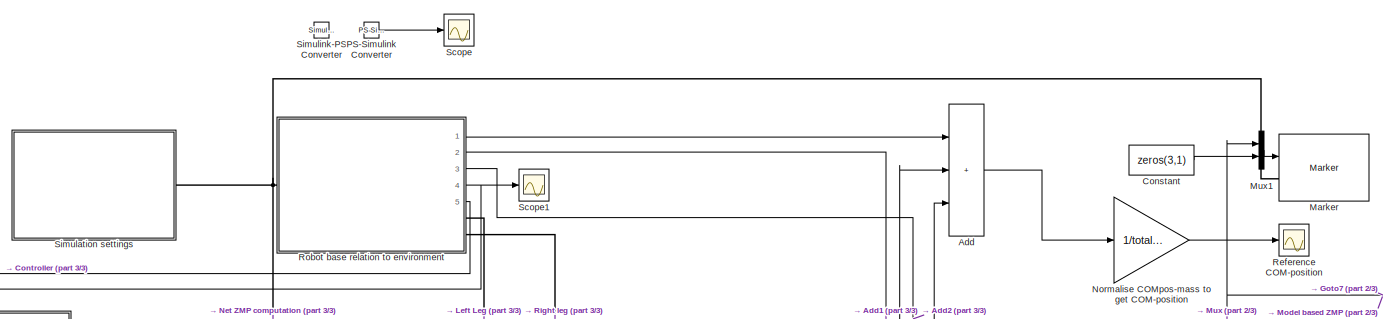
[diagram: root canvas - part 1/3, top center region]
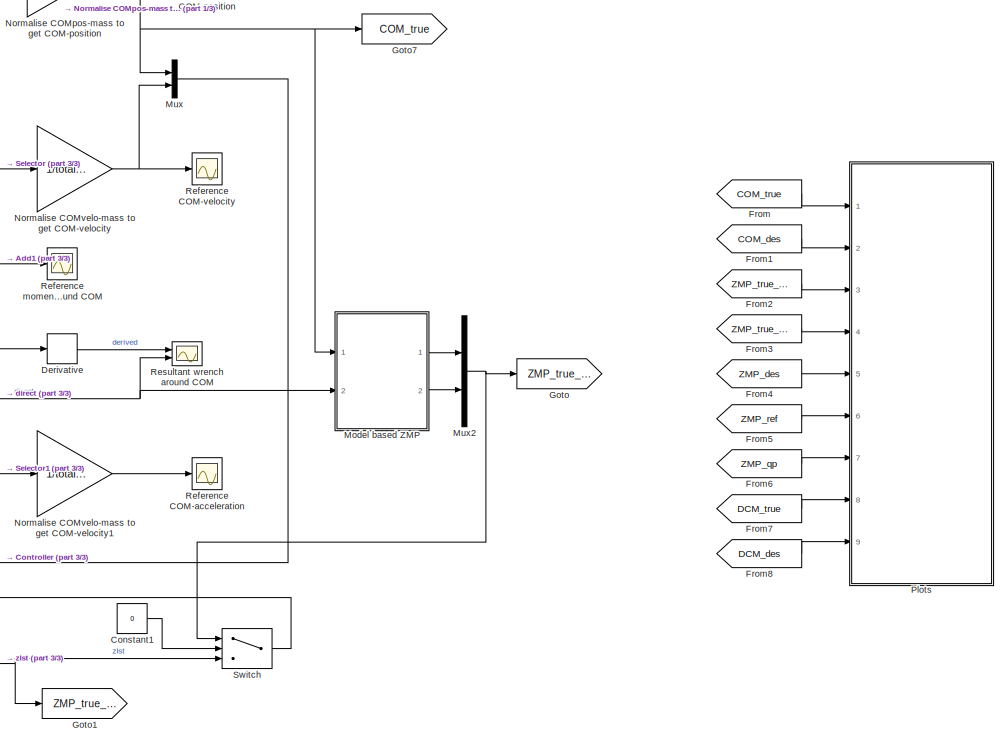
[diagram: root canvas - part 2/3, middle right region]
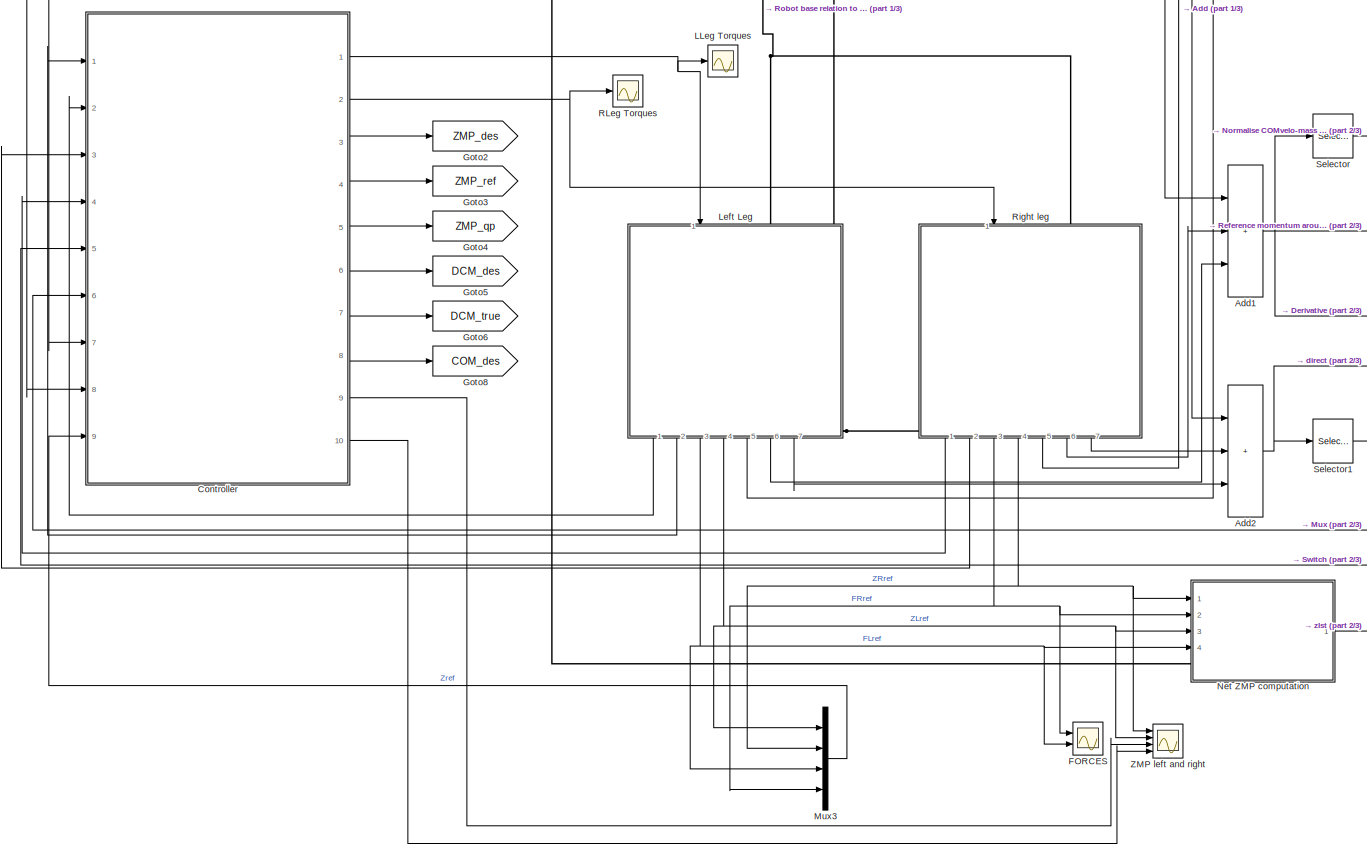
[diagram: root canvas - part 3/3, middle left region]
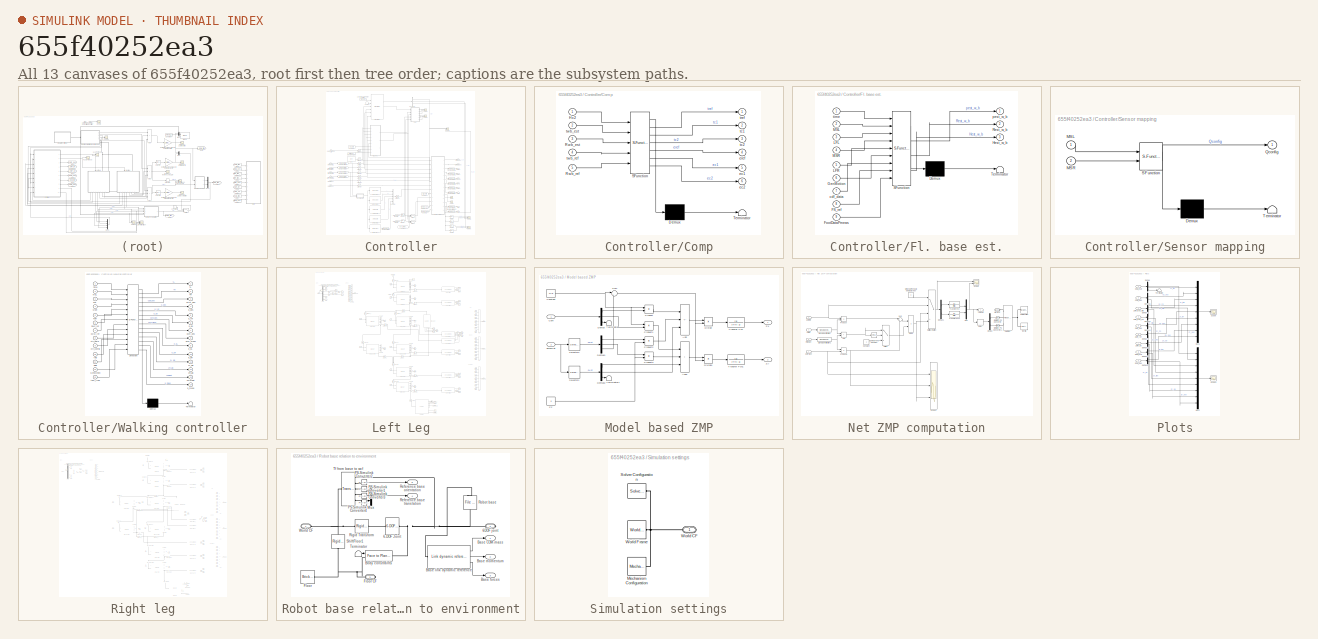
[diagram: thumbnail index - all 13 canvases of the model, root first then tree order]
MODEL slx_655f40252ea3
KIND model
CONFIG AbsTol = 1e-3
CONFIG EnableMultiTasking = on
CONFIG FixedStep = auto
CONFIG MaxStep = 0.01
CONFIG MinStep = auto
CONFIG RelTol = 1e-3
CONFIG SampleTimeConstraint = Unconstrained
CONFIG SolverName = ode23
CONFIG StartTime = 0.0
CONFIG StopTime = TG.Tsim
BLOCK [Sum] Add
  IconShape = rectangular
  Inputs = 3
  Ports = [3, 1]
BLOCK [Sum] Add1
  IconShape = rectangular
  Inputs = 3
  Ports = [3, 1]
BLOCK [Sum] Add2
  IconShape = rectangular
  Inputs = 3
  Ports = [3, 1]
BLOCK [Constant] Constant
  Value = zeros(3,1)
BLOCK [Constant] Constant1
  Value = 0
BLOCK [SubSystem] Controller
  Ports = [9, 10]
  RequestExecContextInheritance = off
BLOCK [BusCreator] Controller/Bus Creator
  DisplayOption = bar
  InheritFromInputs = on
  Inputs = 5
  OutDataTypeStr = Bus: ctrl_data_bus
  Ports = [5, 1]
BLOCK [BusSelector] Controller/Bus Selector
  OutputSignals = zmp,com,comp
  Ports = [1, 3]
BLOCK [Outport] Controller/COM des
  Port = 8
BLOCK [Inport] Controller/COM reference
  Port = 6
BLOCK [Clock] Controller/Clock
  Decimation = 1
  DisplayTime = on
BLOCK [SubSystem] Controller/Comp
  ErrorFcn = Stateflow.Translate.translate
  PermitHierarchicalResolution = ExplicitOnly
  Ports = [5, 6]
  RequestExecContextInheritance = off
  SFBlockType = MATLAB Function
  TreatAsAtomicUnit = on
BLOCK [Demux] Controller/Comp/ Demux 
  Outputs = 1
  Ports = [1, 1]
BLOCK [S-Function] Controller/Comp/ SFunction 
  EnableBusSupport = on
  FunctionName = sf_sfun
  PortCounts = [5 7]
  Ports = [5, 7]
  SFcnIsStateOwnerBlock = off
  SFunctionDeploymentMode = off
  Tag = Stateflow S-Function 4
BLOCK [Terminator] Controller/Comp/ Terminator 
BLOCK [Inport] Controller/Comp/Hc2
BLOCK [Inport] Controller/Comp/Rwb_est
  Port = 3
BLOCK [Inport] Controller/Comp/Rwb_ref
  Port = 5
BLOCK [Outport] Controller/Comp/ec1
  Port = 5
BLOCK [Outport] Controller/Comp/ec2
  Port = 6
BLOCK [Outport] Controller/Comp/eref
  Port = 4
BLOCK [Outport] Controller/Comp/tc1
  Port = 2
BLOCK [Outport] Controller/Comp/tc2
  Port = 3
BLOCK [Outport] Controller/Comp/tref
BLOCK [Inport] Controller/Comp/twb_est
  Port = 2
BLOCK [Inport] Controller/Comp/twb_ref
  Port = 4
BLOCK [Constant] Controller/Configuration parameters of the controller
  NameLocation = top
  OutDataTypeStr = Bus: ctrl_cfg_rem_bus
  SampleTime = ctrl_cfg_rem.par.Ts
  Value = ctrl_cfg_rem
BLOCK [Constant] Controller/Constant
  OutDataTypeStr = Bus: ctrl_cfg_bus
  Value = ctrl_config
BLOCK [Constant] Controller/Constant1
  Value = TG_test_type
BLOCK [Constant] Controller/Constant2
  OutDataTypeStr = Bus: cdf_data_bus
  Value = cdf_data
BLOCK [Constant] Controller/Constant3
  Value = use_reference_FBdata
BLOCK [Constant] Controller/Constant4
  Value = 0
BLOCK [Outport] Controller/DCM des
  Port = 6
BLOCK [Outport] Controller/DCM true
  Port = 7
BLOCK [SubSystem] Controller/Fl. base est.
  ErrorFcn = Stateflow.Translate.translate
  PermitHierarchicalResolution = ExplicitOnly
  Ports = [9, 3]
  RequestExecContextInheritance = off
  SFBlockType = MATLAB Function
  TreatAsAtomicUnit = on
BLOCK [Demux] Controller/Fl. base est./ Demux 
  Outputs = 1
  Ports = [1, 1]
BLOCK [S-Function] Controller/Fl. base est./ SFunction 
  EnableBusSupport = on
  FunctionName = sf_sfun
  PortCounts = [9 4]
  Ports = [9, 4]
  SFcnIsStateOwnerBlock = off
  SFunctionDeploymentMode = off
  Tag = Stateflow S-Function 3
BLOCK [Terminator] Controller/Fl. base est./ Terminator 
BLOCK [Inport] Controller/Fl. base est./FS_ref
  Port = 8
BLOCK [Inport] Controller/Fl. base est./FootDataPmeas
  Port = 9
BLOCK [Inport] Controller/Fl. base est./GenMotion
  Port = 6
BLOCK [Outport] Controller/Fl. base est./Hest_w_b
  Port = 3
BLOCK [Inport] Controller/Fl. base est./LFL
  Port = 3
BLOCK [Inport] Controller/Fl. base est./LFR
  Port = 5
BLOCK [Inport] Controller/Fl. base est./MSL
  Port = 2
BLOCK [Inport] Controller/Fl. base est./MSR
  Port = 4
BLOCK [Outport] Controller/Fl. base est./Rest_w_b
  Port = 2
BLOCK [Inport] Controller/Fl. base est./cdf_data
  Port = 7
BLOCK [Outport] Controller/Fl. base est./pest_w_b
BLOCK [Inport] Controller/Fl. base est./time
BLOCK [FromWorkspace] Controller/From Workspace
  OutputAfterFinalValue = Setting to zero
  SampleTime = Ts
  VariableName = TG_Timeseries
BLOCK [Reference] Controller/Get Jacobian  REF=robotmaniplib/Get Jacobian
  Ports = [1, 1]
  SourceBlock = robotmaniplib/Get Jacobian
  SourceProductBaseCode = RO
  SourceType = Get Jacobian
BLOCK [Reference] Controller/Get Jacobian1  REF=robotmaniplib/Get Jacobian
  Ports = [1, 1]
  SourceBlock = robotmaniplib/Get Jacobian
  SourceProductBaseCode = RO
  SourceType = Get Jacobian
BLOCK [Reference] Controller/Get Transform  REF=robotmaniplib/Get Transform
  Ports = [1, 1]
  SourceBlock = robotmaniplib/Get Transform
  SourceProductBaseCode = RO
  SourceType = Get Transform
BLOCK [Reference] Controller/Get Transform1  REF=robotmaniplib/Get Transform
  Ports = [1, 1]
  SourceBlock = robotmaniplib/Get Transform
  SourceProductBaseCode = RO
  SourceType = Get Transform
BLOCK [Reference] Controller/Gravity Torque  REF=robotmaniplib/Gravity Torque
  Ports = [1, 1]
  SourceBlock = robotmaniplib/Gravity Torque
  SourceProductBaseCode = RO
  SourceType = Gravity Torque
BLOCK [Inport] Controller/Left leg motor force measurement
  Port = 2
BLOCK [Inport] Controller/Left leg motor sensory data
BLOCK [Outport] Controller/Left leg torques
BLOCK [Constant] Controller/Measurement points
  Value = foot.fsen.Pmeas
BLOCK [Inport] Controller/Reference base orientation
  Port = 8
BLOCK [Inport] Controller/Reference base translation
  Port = 7
BLOCK [Inport] Controller/Reference leg zmp data
  Port = 9
BLOCK [Inport] Controller/Right leg motor force measurement1
  Port = 4
BLOCK [Inport] Controller/Right leg motor sensory data
  Port = 3
BLOCK [Outport] Controller/Right leg torques
  Port = 2
BLOCK [Scope] Controller/Scope
  Floating = off
  NumInputPorts = 1
  Ports = [1]
  ScopeSpecificationString = Simulink.scopes.TimeScopeBlockCfg('CurrentConfiguration', extmgr.ConfigurationSet(extmgr.Configuration('Core','General UI',true),extmgr.Configuration('Core','Source UI',true),extmgr.Configuration('Sources','WiredSimulink',true,'DataLoggingVariableName','ScopeData1'),extmgr.Configuration('Visuals','Time Domain',true,'SerializedDisplays',{struct('MinYLimReal','-0.06576','MaxYLimReal','0.06397','YLab...<+1615ch>
BLOCK [Scope] Controller/Scope1
  Floating = off
  NumInputPorts = 1
  Ports = [1]
  ScopeSpecificationString = Simulink.scopes.TimeScopeBlockCfg('CurrentConfiguration', extmgr.ConfigurationSet(extmgr.Configuration('Core','General UI',true),extmgr.Configuration('Core','Source UI',true),extmgr.Configuration('Sources','WiredSimulink',true,'DataLoggingVariableName','ScopeData2'),extmgr.Configuration('Visuals','Time Domain',true,'SerializedDisplays',{struct('MinYLimReal','-1.85967','MaxYLimReal','1.30672','YLab...<+1554ch>
BLOCK [Scope] Controller/Scope2
  Floating = off
  NumInputPorts = 3
  Ports = [3]
  ScopeSpecificationString = Simulink.scopes.TimeScopeBlockCfg('CurrentConfiguration', extmgr.ConfigurationSet(extmgr.Configuration('Core','General UI',true),extmgr.Configuration('Core','Source UI',true),extmgr.Configuration('Sources','WiredSimulink',true,'DataLoggingVariableName','ScopeData1'),extmgr.Configuration('Visuals','Time Domain',true,'SerializedDisplays',{struct('MinYLimReal','-0.15782','MaxYLimReal','0.80305','YLab...<+1895ch>
BLOCK [Scope] Controller/Scope3
  Floating = off
  NumInputPorts = 3
  Ports = [3]
  ScopeSpecificationString = Simulink.scopes.TimeScopeBlockCfg('CurrentConfiguration', extmgr.ConfigurationSet(extmgr.Configuration('Core','General UI',true),extmgr.Configuration('Core','Source UI',true),extmgr.Configuration('Sources','WiredSimulink',true,'DataLoggingVariableName','ScopeData2'),extmgr.Configuration('Visuals','Time Domain',true,'SerializedDisplays',{struct('MinYLimReal','-0.02653','MaxYLimReal','0.019','YLabel...<+1896ch>
BLOCK [Scope] Controller/Scope4
  Floating = off
  NumInputPorts = 3
  Ports = [3]
  ScopeSpecificationString = Simulink.scopes.TimeScopeBlockCfg('CurrentConfiguration', extmgr.ConfigurationSet(extmgr.Configuration('Core','General UI',true),extmgr.Configuration('Core','Source UI',true),extmgr.Configuration('Sources','WiredSimulink',true,'DataLoggingVariableName','ScopeData1'),extmgr.Configuration('Visuals','Time Domain',true,'SerializedDisplays',{struct('MinYLimReal','-0.03096','MaxYLimReal','0.05822','YLab...<+1676ch>
BLOCK [Scope] Controller/Scope5
  Floating = off
  NumInputPorts = 3
  Ports = [3]
  ScopeSpecificationString = Simulink.scopes.TimeScopeBlockCfg('CurrentConfiguration', extmgr.ConfigurationSet(extmgr.Configuration('Core','General UI',true),extmgr.Configuration('Core','Source UI',true),extmgr.Configuration('Sources','WiredSimulink',true,'DataLoggingVariableName','ScopeData1'),extmgr.Configuration('Visuals','Time Domain',true,'SerializedDisplays',{struct('MinYLimReal','-0.22713','MaxYLimReal','0.68457','YLab...<+1729ch>
BLOCK [Scope] Controller/Scope6
  Floating = off
  NumInputPorts = 3
  Ports = [3]
  ScopeSpecificationString = Simulink.scopes.TimeScopeBlockCfg('CurrentConfiguration', extmgr.ConfigurationSet(extmgr.Configuration('Core','General UI',true),extmgr.Configuration('Core','Source UI',true),extmgr.Configuration('Sources','WiredSimulink',true,'DataLoggingVariableName','ScopeData2'),extmgr.Configuration('Visuals','Time Domain',true,'SerializedDisplays',{struct('MinYLimReal','-0.15237','MaxYLimReal','0.19805','YLab...<+1738ch>
BLOCK [Selector] Controller/Selector
  IndexOptions = Index vector (dialog)
  Indices = [1:3]
  InputPortWidth = 12
  OutputSizes = 1
  Ports = [1, 1]
BLOCK [Selector] Controller/Selector1
  IndexOptions = Index vector (dialog)
  Indices = [4:6]
  InputPortWidth = 12
  OutputSizes = 1
  Ports = [1, 1]
BLOCK [Selector] Controller/Selector2
  IndexOptions = Index vector (dialog)
  Indices = [7:9]
  InputPortWidth = 12
  OutputSizes = 1
  Ports = [1, 1]
BLOCK [Selector] Controller/Selector3
  IndexOptions = Index vector (dialog)
  Indices = [10:12]
  InputPortWidth = 12
  OutputSizes = 1
  Ports = [1, 1]
BLOCK [SubSystem] Controller/Sensor mapping
  ErrorFcn = Stateflow.Translate.translate
  PermitHierarchicalResolution = ExplicitOnly
  Ports = [2, 1]
  RequestExecContextInheritance = off
  SFBlockType = MATLAB Function
  TreatAsAtomicUnit = on
BLOCK [Demux] Controller/Sensor mapping/ Demux 
  Outputs = 1
  Ports = [1, 1]
BLOCK [S-Function] Controller/Sensor mapping/ SFunction 
  EnableBusSupport = on
  FunctionName = sf_sfun
  PortCounts = [2 2]
  Ports = [2, 2]
  SFcnIsStateOwnerBlock = off
  SFunctionDeploymentMode = off
  Tag = Stateflow S-Function 1
BLOCK [Terminator] Controller/Sensor mapping/ Terminator 
BLOCK [Inport] Controller/Sensor mapping/MSL
BLOCK [Inport] Controller/Sensor mapping/MSR
  Port = 2
BLOCK [Outport] Controller/Sensor mapping/Qconfig
BLOCK [SignalSpecification] Controller/Signal Specification
  OutDataTypeStr = Bus: leg_str_bus
BLOCK [SignalSpecification] Controller/Signal Specification1
  OutDataTypeStr = Bus: leg_str_bus
BLOCK [SignalSpecification] Controller/Signal Specification10
  OutDataTypeStr = Bus: fs_str_bus
BLOCK [SignalSpecification] Controller/Signal Specification11
  Dimensions = 2
BLOCK [SignalSpecification] Controller/Signal Specification12
  Dimensions = 2
BLOCK [SignalSpecification] Controller/Signal Specification2
  Dimensions = 2
BLOCK [SignalSpecification] Controller/Signal Specification3
  Dimensions = 2
BLOCK [SignalSpecification] Controller/Signal Specification4
  Dimensions = [12,1]
BLOCK [SignalSpecification] Controller/Signal Specification5
  Dimensions = 2
BLOCK [SignalSpecification] Controller/Signal Specification6
  Dimensions = 2
BLOCK [SignalSpecification] Controller/Signal Specification7
  Dimensions = 2
BLOCK [SignalSpecification] Controller/Signal Specification8
  Dimensions = 2
BLOCK [SignalSpecification] Controller/Signal Specification9
  OutDataTypeStr = Bus: fs_str_bus
BLOCK [Reference] Controller/State Estimation  REF=controller_lib/Controller Version 2/State Estimation  (lib defined in mdl_7825784cbb12, mdl_a3d5ea557988, +4 more)
  Ports = [7, 5]
  SourceBlock = controller_lib/Controller Version 2/State Estimation
BLOCK [Switch] Controller/Switch
  Criteria = u2 > Threshold
  InputSameDT = off
  SaturateOnIntegerOverflow = off
BLOCK [Switch] Controller/Switch1
  Criteria = u2 > Threshold
  InputSameDT = off
  SaturateOnIntegerOverflow = off
BLOCK [UnitDelay] Controller/Unit Delay
  HasFrameUpgradeWarning = on
  InitialCondition = lleg_str
  SampleTime = Ts
BLOCK [UnitDelay] Controller/Unit Delay1
  HasFrameUpgradeWarning = on
  InitialCondition = lleg_FS_str
  SampleTime = Ts
BLOCK [UnitDelay] Controller/Unit Delay10
  HasFrameUpgradeWarning = on
  InitialCondition = zeros(6,1)
  SampleTime = Ts
BLOCK [UnitDelay] Controller/Unit Delay2
  HasFrameUpgradeWarning = on
  InitialCondition = rleg_str
  SampleTime = Ts
BLOCK [UnitDelay] Controller/Unit Delay3
  HasFrameUpgradeWarning = on
  InitialCondition = rleg_FS_str
  SampleTime = Ts
BLOCK [UnitDelay] Controller/Unit Delay4
  HasFrameUpgradeWarning = on
  InitialCondition = zeros(6,1)
  SampleTime = Ts
BLOCK [UnitDelay] Controller/Unit Delay5
  HasFrameUpgradeWarning = on
  InitialCondition = zeros(2,1)
  SampleTime = Ts
BLOCK [UnitDelay] Controller/Unit Delay6
  HasFrameUpgradeWarning = on
  InitialCondition = ctrl_data
  SampleTime = Ts
BLOCK [UnitDelay] Controller/Unit Delay7
  HasFrameUpgradeWarning = on
  InitialCondition = eye(3)
  SampleTime = Ts
BLOCK [UnitDelay] Controller/Unit Delay8
  HasFrameUpgradeWarning = on
  InitialCondition = zeros(3,1)
  SampleTime = Ts
BLOCK [UnitDelay] Controller/Unit Delay9
  HasFrameUpgradeWarning = on
  SampleTime = Ts
BLOCK [SubSystem] Controller/Walking controller
  ErrorFcn = Stateflow.Translate.translate
  PermitHierarchicalResolution = ExplicitOnly
  Ports = [13, 14]
  RequestExecContextInheritance = off
  SFBlockType = MATLAB Function
  TreatAsAtomicUnit = on
BLOCK [Demux] Controller/Walking controller/ Demux 
  Outputs = 1
  Ports = [1, 1]
BLOCK [S-Function] Controller/Walking controller/ SFunction 
  EnableBusSupport = on
  FunctionName = sf_sfun
  PortCounts = [13 15]
  Ports = [13, 15]
  SFcnIsStateOwnerBlock = off
  SFunctionDeploymentMode = off
  Tag = Stateflow S-Function 2
BLOCK [Terminator] Controller/Walking controller/ Terminator 
BLOCK [Outport] Controller/Walking controller/COMDat
  Port = 13
BLOCK [Outport] Controller/Walking controller/COM_des
  Port = 3
BLOCK [Inport] Controller/Walking controller/COM_ref
  Port = 7
BLOCK [Inport] Controller/Walking controller/FSL
  Port = 3
BLOCK [Inport] Controller/Walking controller/FSR
  Port = 5
BLOCK [Inport] Controller/Walking controller/GenMotion
  Port = 12
BLOCK [Inport] Controller/Walking controller/MSL
  Port = 2
BLOCK [Inport] Controller/Walking controller/MSR
  Port = 4
BLOCK [Inport] Controller/Walking controller/Rwb
  Port = 11
BLOCK [Outport] Controller/Walking controller/TL
BLOCK [Outport] Controller/Walking controller/TR
  Port = 2
BLOCK [Inport] Controller/Walking controller/ZMP_ref
  Port = 6
BLOCK [Inport] Controller/Walking controller/ctrl_config
  Port = 9
BLOCK [Inport] Controller/Walking controller/ctrl_data
  Port = 8
BLOCK [Outport] Controller/Walking controller/dcm_des
  Port = 7
BLOCK [Outport] Controller/Walking controller/dcm_meas
  Port = 8
BLOCK [Outport] Controller/Walking controller/e_qL
  Port = 9
BLOCK [Outport] Controller/Walking controller/e_qR
  Port = 10
BLOCK [Outport] Controller/Walking controller/p_des
  Port = 4
BLOCK [Outport] Controller/Walking controller/p_meas
  Port = 14
BLOCK [Outport] Controller/Walking controller/p_qp
  Port = 6
BLOCK [Outport] Controller/Walking controller/p_ref
  Port = 5
BLOCK [Inport] Controller/Walking controller/test_type
  Port = 13
BLOCK [Inport] Controller/Walking controller/time
BLOCK [Inport] Controller/Walking controller/twb
  Port = 10
BLOCK [Outport] Controller/Walking controller/zL_glo
  Port = 11
BLOCK [Outport] Controller/Walking controller/zR_glo
  Port = 12
BLOCK [Outport] Controller/ZMP des
  Port = 3
BLOCK [Outport] Controller/ZMP qp
  Port = 5
BLOCK [Outport] Controller/ZMP ref calc
  Port = 4
BLOCK [Inport] Controller/ZMP reference
  Port = 5
BLOCK [Outport] Controller/zlglo
  Port = 9
BLOCK [Outport] Controller/zrglo
  Port = 10
BLOCK [Derivative] Derivative
  CoefficientInTFapproximation = 400
BLOCK [Scope] FORCES
  Floating = off
  NumInputPorts = 2
  Ports = [2]
  ScopeSpecificationString = Simulink.scopes.TimeScopeBlockCfg('CurrentConfiguration', extmgr.ConfigurationSet(extmgr.Configuration('Core','General UI',true),extmgr.Configuration('Core','Source UI',true),extmgr.Configuration('Sources','WiredSimulink',true,'DataLoggingVariableName','ScopeData1'),extmgr.Configuration('Visuals','Time Domain',true,'SerializedDisplays',{struct('MinYLimReal','-34.11285','MaxYLimReal','307.01561','Y...<+1473ch>
BLOCK [From] From
  GotoTag = COM_true
BLOCK [From] From1
  GotoTag = COM_des
BLOCK [From] From2
  GotoTag = ZMP_true_MB
BLOCK [From] From3
  GotoTag = ZMP_true_FS
BLOCK [From] From4
  GotoTag = ZMP_des
BLOCK [From] From5
  GotoTag = ZMP_ref
BLOCK [From] From6
  GotoTag = ZMP_qp
BLOCK [From] From7
  GotoTag = DCM_true
BLOCK [From] From8
  GotoTag = DCM_des
BLOCK [Goto] Goto
  GotoTag = ZMP_true_MB
BLOCK [Goto] Goto1
  GotoTag = ZMP_true_FS
BLOCK [Goto] Goto2
  GotoTag = ZMP_des
BLOCK [Goto] Goto3
  GotoTag = ZMP_ref
BLOCK [Goto] Goto4
  GotoTag = ZMP_qp
BLOCK [Goto] Goto5
  GotoTag = DCM_des
BLOCK [Goto] Goto6
  GotoTag = DCM_true
BLOCK [Goto] Goto7
  GotoTag = COM_true
BLOCK [Goto] Goto8
  GotoTag = COM_des
BLOCK [Scope] LLeg Torques
  Floating = off
  NumInputPorts = 1
  Ports = [1]
  ScopeSpecificationString = Simulink.scopes.TimeScopeBlockCfg('CurrentConfiguration', extmgr.ConfigurationSet(extmgr.Configuration('Core','General UI',true),extmgr.Configuration('Core','Source UI',true),extmgr.Configuration('Sources','WiredSimulink',true,'DataLoggingVariableName','ScopeData1'),extmgr.Configuration('Visuals','Time Domain',true,'SerializedDisplays',{struct('MinYLimReal','-70.74262','MaxYLimReal','21.23741','YL...<+1542ch>
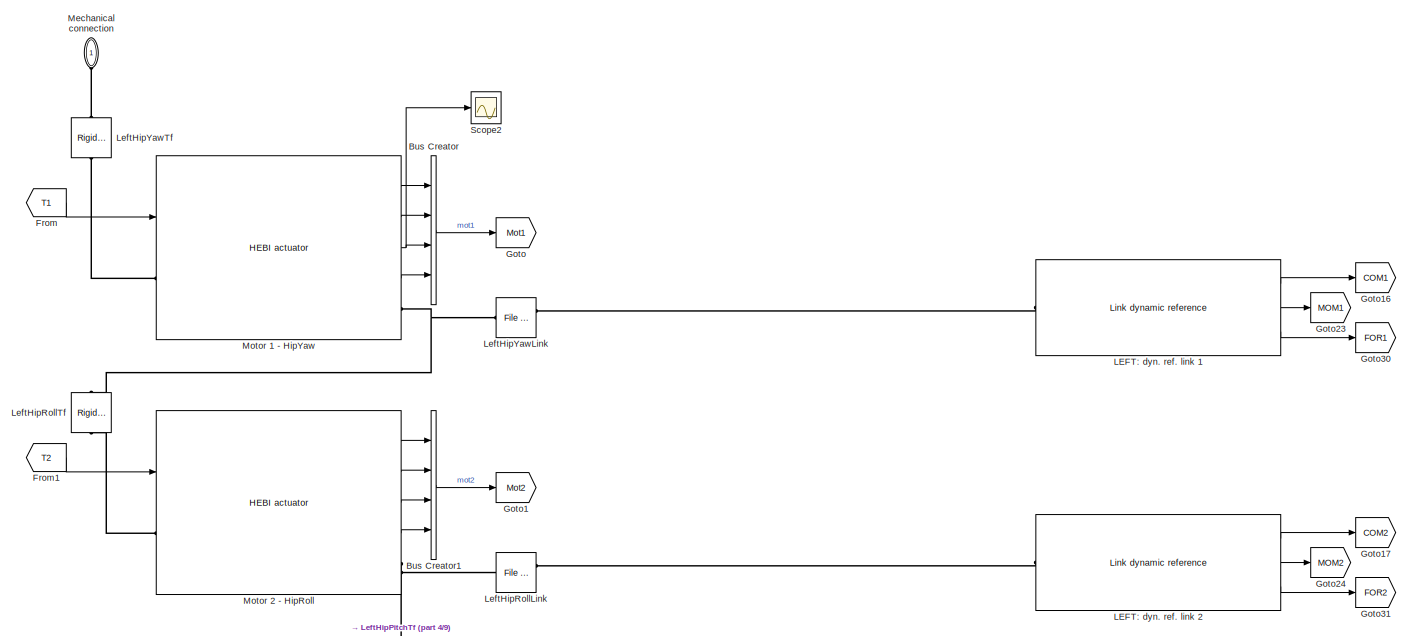
[diagram: Left Leg - part 1/9, top center region]
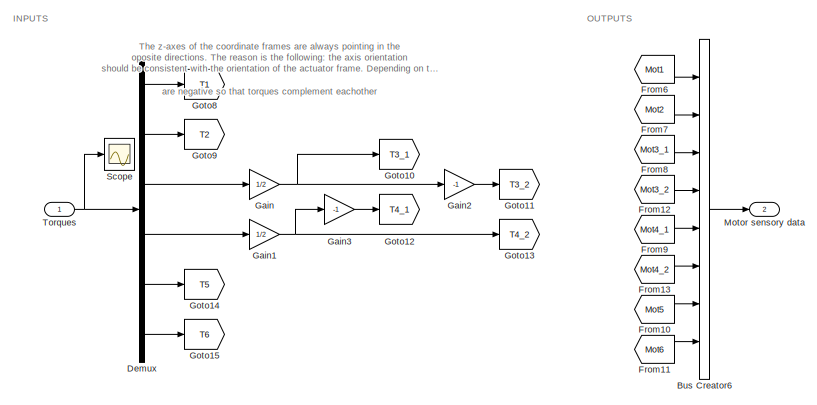
[diagram: Left Leg - part 2/9, top left region]
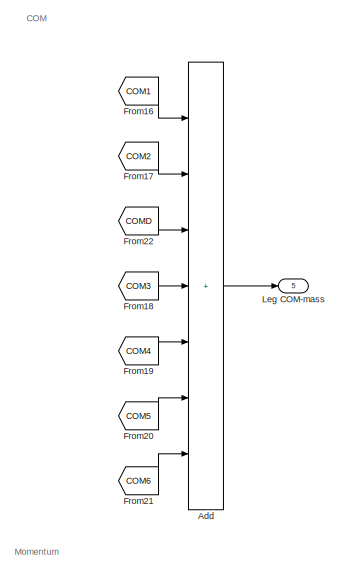
[diagram: Left Leg - part 3/9, middle right region]
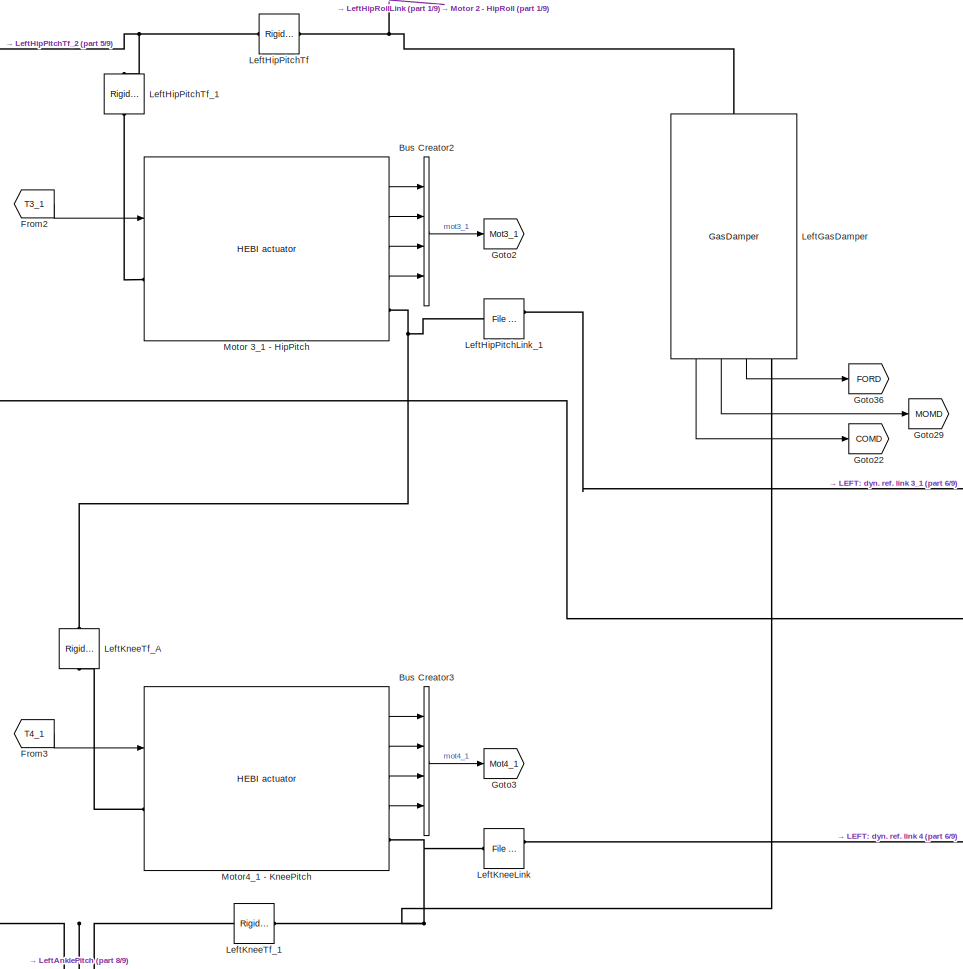
[diagram: Left Leg - part 4/9, central region]
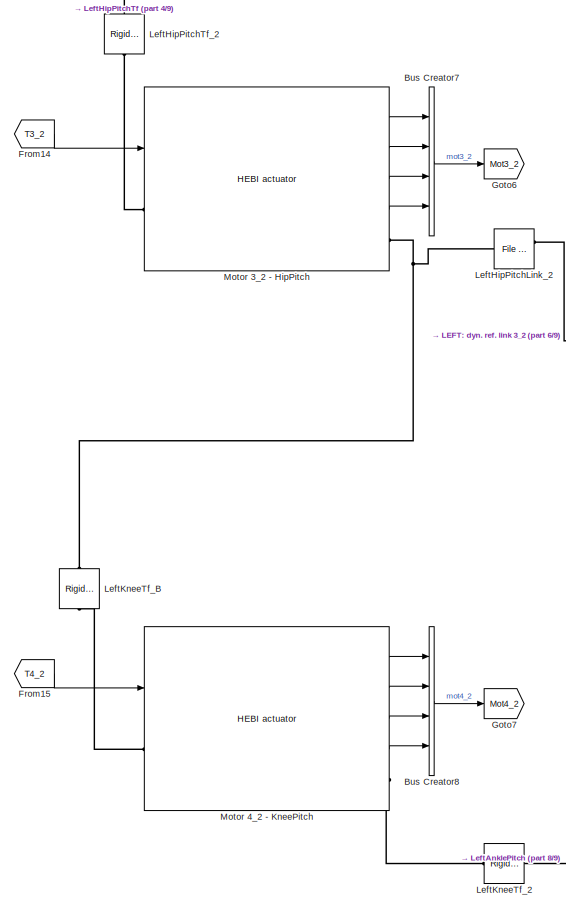
[diagram: Left Leg - part 5/9, central region]
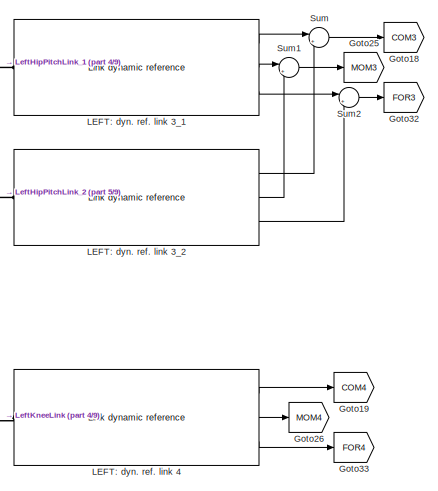
[diagram: Left Leg - part 6/9, middle right region]
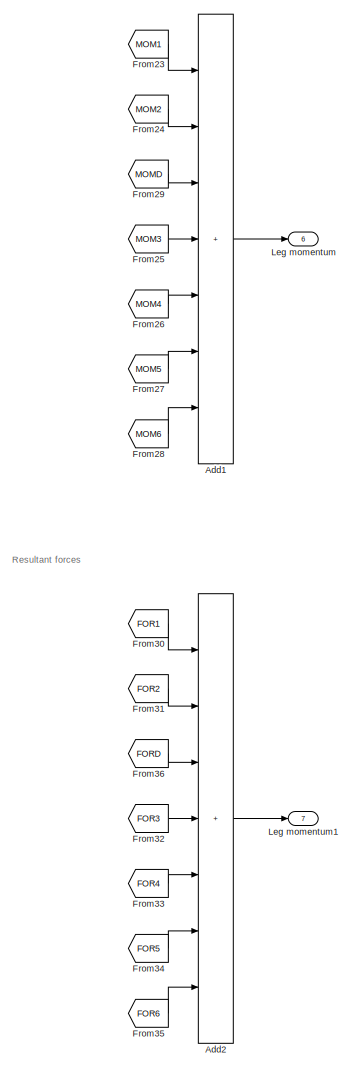
[diagram: Left Leg - part 7/9, middle right region]
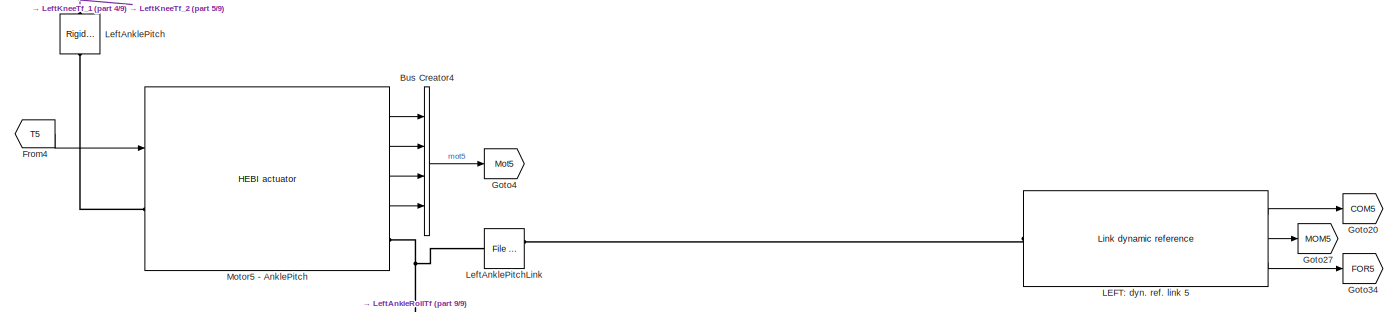
[diagram: Left Leg - part 8/9, bottom center region]
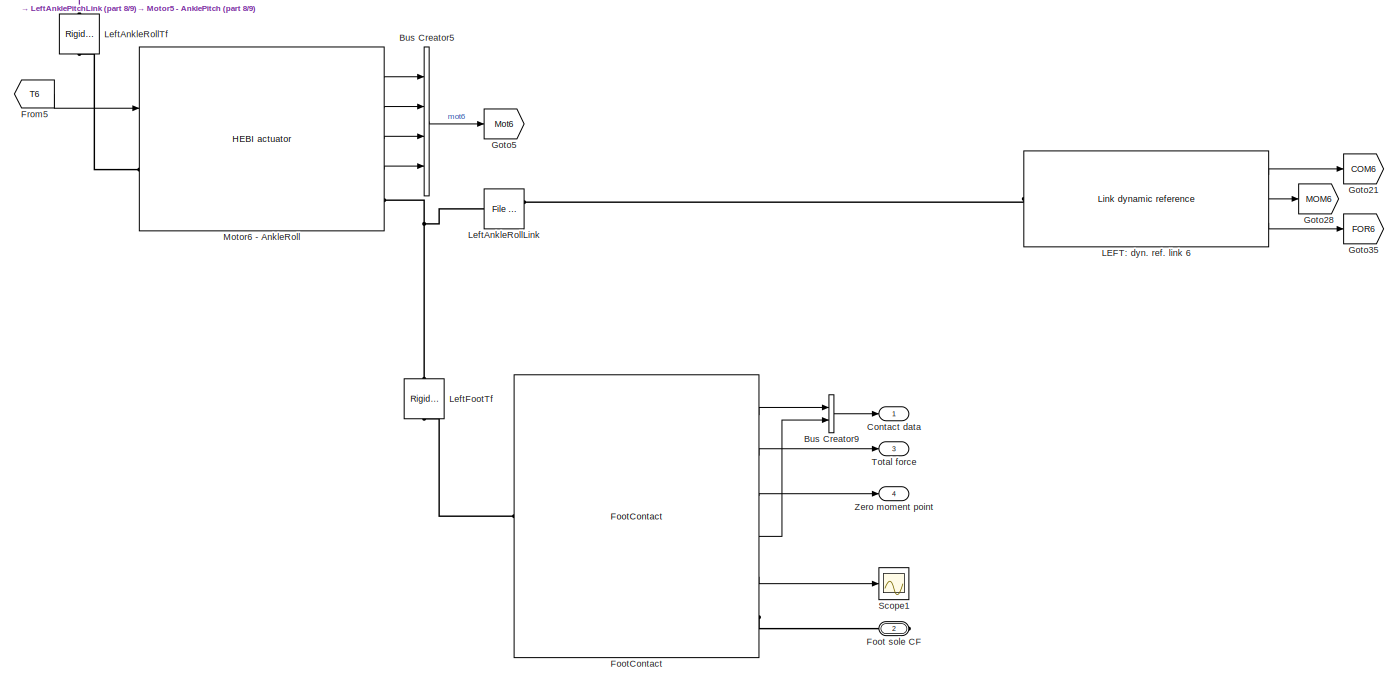
[diagram: Left Leg - part 9/9, bottom center region]
BLOCK [SubSystem] Left Leg
  NameLocation = top
  Ports = [1, 7, 0, 0, 0, 1, 1]
  RequestExecContextInheritance = off
BLOCK [Sum] Left Leg/Add
  IconShape = rectangular
  Inputs = 7
  Ports = [7, 1]
BLOCK [Sum] Left Leg/Add1
  IconShape = rectangular
  Inputs = 7
  Ports = [7, 1]
BLOCK [Sum] Left Leg/Add2
  IconShape = rectangular
  Inputs = 7
  Ports = [7, 1]
BLOCK [BusCreator] Left Leg/Bus Creator
  DisplayOption = bar
  InheritFromInputs = on
  Inputs = 4
  Ports = [4, 1]
BLOCK [BusCreator] Left Leg/Bus Creator1
  DisplayOption = bar
  InheritFromInputs = on
  Inputs = 4
  Ports = [4, 1]
BLOCK [BusCreator] Left Leg/Bus Creator2
  DisplayOption = bar
  InheritFromInputs = on
  Inputs = 4
  Ports = [4, 1]
BLOCK [BusCreator] Left Leg/Bus Creator3
  DisplayOption = bar
  InheritFromInputs = on
  Inputs = 4
  Ports = [4, 1]
BLOCK [BusCreator] Left Leg/Bus Creator4
  DisplayOption = bar
  InheritFromInputs = on
  Inputs = 4
  Ports = [4, 1]
BLOCK [BusCreator] Left Leg/Bus Creator5
  DisplayOption = bar
  InheritFromInputs = on
  Inputs = 4
  Ports = [4, 1]
BLOCK [BusCreator] Left Leg/Bus Creator6
  DisplayOption = bar
  InheritFromInputs = on
  Inputs = 8
  OutDataTypeStr = Bus: leg_str_bus
  Ports = [8, 1]
BLOCK [BusCreator] Left Leg/Bus Creator7
  DisplayOption = bar
  InheritFromInputs = on
  Inputs = 4
  Ports = [4, 1]
BLOCK [BusCreator] Left Leg/Bus Creator8
  DisplayOption = bar
  InheritFromInputs = on
  Inputs = 4
  Ports = [4, 1]
BLOCK [BusCreator] Left Leg/Bus Creator9
  DisplayOption = bar
  InheritFromInputs = on
  Inputs = 2
  Ports = [2, 1]
BLOCK [Outport] Left Leg/Contact data
  NameLocation = top
BLOCK [Demux] Left Leg/Demux
  Outputs = 6
  Ports = [1, 6]
BLOCK [PMIOPort] Left Leg/Foot sole CF
  Port = 2
  Side = Right
BLOCK [Reference] Left Leg/FootContact  REF=biped_lib/FootContact  (lib defined in slx_0986bfd27444)
  Ports = [0, 5, 0, 0, 0, 1, 1]
  SourceBlock = biped_lib/FootContact
BLOCK [From] Left Leg/From
  GotoTag = T1
BLOCK [From] Left Leg/From1
  GotoTag = T2
BLOCK [From] Left Leg/From10
  GotoTag = Mot5
BLOCK [From] Left Leg/From11
  GotoTag = Mot6
BLOCK [From] Left Leg/From12
  GotoTag = Mot3_2
BLOCK [From] Left Leg/From13
  GotoTag = Mot4_2
BLOCK [From] Left Leg/From14
  GotoTag = T3_2
BLOCK [From] Left Leg/From15
  GotoTag = T4_2
BLOCK [From] Left Leg/From16
  GotoTag = COM1
BLOCK [From] Left Leg/From17
  GotoTag = COM2
BLOCK [From] Left Leg/From18
  GotoTag = COM3
BLOCK [From] Left Leg/From19
  GotoTag = COM4
BLOCK [From] Left Leg/From2
  GotoTag = T3_1
BLOCK [From] Left Leg/From20
  GotoTag = COM5
BLOCK [From] Left Leg/From21
  GotoTag = COM6
BLOCK [From] Left Leg/From22
  GotoTag = COMD
BLOCK [From] Left Leg/From23
  GotoTag = MOM1
BLOCK [From] Left Leg/From24
  GotoTag = MOM2
BLOCK [From] Left Leg/From25
  GotoTag = MOM3
BLOCK [From] Left Leg/From26
  GotoTag = MOM4
BLOCK [From] Left Leg/From27
  GotoTag = MOM5
BLOCK [From] Left Leg/From28
  GotoTag = MOM6
BLOCK [From] Left Leg/From29
  GotoTag = MOMD
BLOCK [From] Left Leg/From3
  GotoTag = T4_1
BLOCK [From] Left Leg/From30
  GotoTag = FOR1
BLOCK [From] Left Leg/From31
  GotoTag = FOR2
BLOCK [From] Left Leg/From32
  GotoTag = FOR3
BLOCK [From] Left Leg/From33
  GotoTag = FOR4
BLOCK [From] Left Leg/From34
  GotoTag = FOR5
BLOCK [From] Left Leg/From35
  GotoTag = FOR6
BLOCK [From] Left Leg/From36
  GotoTag = FORD
BLOCK [From] Left Leg/From4
  GotoTag = T5
BLOCK [From] Left Leg/From5
  GotoTag = T6
BLOCK [From] Left Leg/From6
  GotoTag = Mot1
BLOCK [From] Left Leg/From7
  GotoTag = Mot2
BLOCK [From] Left Leg/From8
  GotoTag = Mot3_1
BLOCK [From] Left Leg/From9
  GotoTag = Mot4_1
BLOCK [Gain] Left Leg/Gain
  Gain = 1/2
BLOCK [Gain] Left Leg/Gain1
  Gain = 1/2
BLOCK [Gain] Left Leg/Gain2
  Gain = -1
BLOCK [Gain] Left Leg/Gain3
  Gain = -1
BLOCK [Goto] Left Leg/Goto
  GotoTag = Mot1
BLOCK [Goto] Left Leg/Goto1
  GotoTag = Mot2
BLOCK [Goto] Left Leg/Goto10
  GotoTag = T3_1
BLOCK [Goto] Left Leg/Goto11
  GotoTag = T3_2
BLOCK [Goto] Left Leg/Goto12
  GotoTag = T4_1
BLOCK [Goto] Left Leg/Goto13
  GotoTag = T4_2
BLOCK [Goto] Left Leg/Goto14
  GotoTag = T5
BLOCK [Goto] Left Leg/Goto15
  GotoTag = T6
BLOCK [Goto] Left Leg/Goto16
  GotoTag = COM1
BLOCK [Goto] Left Leg/Goto17
  GotoTag = COM2
BLOCK [Goto] Left Leg/Goto18
  GotoTag = COM3
BLOCK [Goto] Left Leg/Goto19
  GotoTag = COM4
BLOCK [Goto] Left Leg/Goto2
  GotoTag = Mot3_1
BLOCK [Goto] Left Leg/Goto20
  GotoTag = COM5
BLOCK [Goto] Left Leg/Goto21
  GotoTag = COM6
BLOCK [Goto] Left Leg/Goto22
  GotoTag = COMD
BLOCK [Goto] Left Leg/Goto23
  GotoTag = MOM1
BLOCK [Goto] Left Leg/Goto24
  GotoTag = MOM2
BLOCK [Goto] Left Leg/Goto25
  GotoTag = MOM3
BLOCK [Goto] Left Leg/Goto26
  GotoTag = MOM4
BLOCK [Goto] Left Leg/Goto27
  GotoTag = MOM5
BLOCK [Goto] Left Leg/Goto28
  GotoTag = MOM6
BLOCK [Goto] Left Leg/Goto29
  GotoTag = MOMD
BLOCK [Goto] Left Leg/Goto3
  GotoTag = Mot4_1
BLOCK [Goto] Left Leg/Goto30
  GotoTag = FOR1
BLOCK [Goto] Left Leg/Goto31
  GotoTag = FOR2
BLOCK [Goto] Left Leg/Goto32
  GotoTag = FOR3
BLOCK [Goto] Left Leg/Goto33
  GotoTag = FOR4
BLOCK [Goto] Left Leg/Goto34
  GotoTag = FOR5
BLOCK [Goto] Left Leg/Goto35
  GotoTag = FOR6
BLOCK [Goto] Left Leg/Goto36
  GotoTag = FORD
BLOCK [Goto] Left Leg/Goto4
  GotoTag = Mot5
BLOCK [Goto] Left Leg/Goto5
  GotoTag = Mot6
BLOCK [Goto] Left Leg/Goto6
  GotoTag = Mot3_2
BLOCK [Goto] Left Leg/Goto7
  GotoTag = Mot4_2
BLOCK [Goto] Left Leg/Goto8
  GotoTag = T1
BLOCK [Goto] Left Leg/Goto9
  GotoTag = T2
BLOCK [Reference] Left Leg/LEFT: dyn. ref. link 1  REF=biped_lib/Link dynamic reference  (lib defined in slx_0986bfd27444)
  Ports = [0, 3, 0, 0, 0, 1]
  SourceBlock = biped_lib/Link dynamic reference
BLOCK [Reference] Left Leg/LEFT: dyn. ref. link 2  REF=biped_lib/Link dynamic reference  (lib defined in slx_0986bfd27444)
  Ports = [0, 3, 0, 0, 0, 1]
  SourceBlock = biped_lib/Link dynamic reference
BLOCK [Reference] Left Leg/LEFT: dyn. ref. link 3_1  REF=biped_lib/Link dynamic reference  (lib defined in slx_0986bfd27444)
  Ports = [0, 3, 0, 0, 0, 1]
  SourceBlock = biped_lib/Link dynamic reference
BLOCK [Reference] Left Leg/LEFT: dyn. ref. link 3_2  REF=biped_lib/Link dynamic reference  (lib defined in slx_0986bfd27444)
  Ports = [0, 3, 0, 0, 0, 1]
  SourceBlock = biped_lib/Link dynamic reference
BLOCK [Reference] Left Leg/LEFT: dyn. ref. link 4  REF=biped_lib/Link dynamic reference  (lib defined in slx_0986bfd27444)
  Ports = [0, 3, 0, 0, 0, 1]
  SourceBlock = biped_lib/Link dynamic reference
BLOCK [Reference] Left Leg/LEFT: dyn. ref. link 5  REF=biped_lib/Link dynamic reference  (lib defined in slx_0986bfd27444)
  Ports = [0, 3, 0, 0, 0, 1]
  SourceBlock = biped_lib/Link dynamic reference
BLOCK [Reference] Left Leg/LEFT: dyn. ref. link 6  REF=biped_lib/Link dynamic reference  (lib defined in slx_0986bfd27444)
  Ports = [0, 3, 0, 0, 0, 1]
  SourceBlock = biped_lib/Link dynamic reference
BLOCK [Reference] Left Leg/LeftAnklePitch  REF=sm_lib/Frames and
Transforms/Rigid
Transform
  NameLocation = left
  Ports = [0, 0, 0, 0, 0, 1, 1]
  SourceBlock = sm_lib/Frames and\nTransforms/Rigid\nTransform
  SourceProductBaseCode = MS
  SourceType = Rigid\nTransform
BLOCK [Reference] Left Leg/LeftAnklePitchLink  REF=sm_lib/Body Elements/File Solid
  NameLocation = top
  Ports = [0, 0, 0, 0, 0, 2, 1]
  SourceBlock = sm_lib/Body Elements/File Solid
  SourceProductBaseCode = MS
  SourceType = File Solid
BLOCK [Reference] Left Leg/LeftAnkleRollLink  REF=sm_lib/Body Elements/File Solid
  NameLocation = top
  Ports = [0, 0, 0, 0, 0, 2, 1]
  SourceBlock = sm_lib/Body Elements/File Solid
  SourceProductBaseCode = MS
  SourceType = File Solid
BLOCK [Reference] Left Leg/LeftAnkleRollTf  REF=sm_lib/Frames and
Transforms/Rigid
Transform
  NameLocation = left
  Ports = [0, 0, 0, 0, 0, 1, 1]
  SourceBlock = sm_lib/Frames and\nTransforms/Rigid\nTransform
  SourceProductBaseCode = MS
  SourceType = Rigid\nTransform
BLOCK [Reference] Left Leg/LeftFootTf  REF=sm_lib/Frames and
Transforms/Rigid
Transform
  NameLocation = left
  Ports = [0, 0, 0, 0, 0, 1, 1]
  SourceBlock = sm_lib/Frames and\nTransforms/Rigid\nTransform
  SourceProductBaseCode = MS
  SourceType = Rigid\nTransform
BLOCK [Reference] Left Leg/LeftGasDamper  REF=biped_lib/GasDamper  (lib defined in slx_0986bfd27444)
  NameLocation = right
  Ports = [0, 3, 0, 0, 0, 1, 1]
  SourceBlock = biped_lib/GasDamper
BLOCK [Reference] Left Leg/LeftHipPitchLink_1  REF=sm_lib/Body Elements/File Solid
  NameLocation = top
  Ports = [0, 0, 0, 0, 0, 2, 1]
  SourceBlock = sm_lib/Body Elements/File Solid
  SourceProductBaseCode = MS
  SourceType = File Solid
BLOCK [Reference] Left Leg/LeftHipPitchLink_2  REF=sm_lib/Body Elements/File Solid
  NameLocation = top
  Ports = [0, 0, 0, 0, 0, 2, 1]
  SourceBlock = sm_lib/Body Elements/File Solid
  SourceProductBaseCode = MS
  SourceType = File Solid
BLOCK [Reference] Left Leg/LeftHipPitchTf  REF=sm_lib/Frames and
Transforms/Rigid
Transform
  NameLocation = top
  Ports = [0, 0, 0, 0, 0, 1, 1]
  SourceBlock = sm_lib/Frames and\nTransforms/Rigid\nTransform
  SourceProductBaseCode = MS
  SourceType = Rigid\nTransform
BLOCK [Reference] Left Leg/LeftHipPitchTf_1  REF=sm_lib/Frames and
Transforms/Rigid
Transform
  NameLocation = left
  Ports = [0, 0, 0, 0, 0, 1, 1]
  SourceBlock = sm_lib/Frames and\nTransforms/Rigid\nTransform
  SourceProductBaseCode = MS
  SourceType = Rigid\nTransform
BLOCK [Reference] Left Leg/LeftHipPitchTf_2  REF=sm_lib/Frames and
Transforms/Rigid
Transform
  NameLocation = left
  Ports = [0, 0, 0, 0, 0, 1, 1]
  SourceBlock = sm_lib/Frames and\nTransforms/Rigid\nTransform
  SourceProductBaseCode = MS
  SourceType = Rigid\nTransform
BLOCK [Reference] Left Leg/LeftHipRollLink  REF=sm_lib/Body Elements/File Solid
  NameLocation = top
  Ports = [0, 0, 0, 0, 0, 2, 1]
  SourceBlock = sm_lib/Body Elements/File Solid
  SourceProductBaseCode = MS
  SourceType = File Solid
BLOCK [Reference] Left Leg/LeftHipRollTf  REF=sm_lib/Frames and
Transforms/Rigid
Transform
  NameLocation = left
  Ports = [0, 0, 0, 0, 0, 1, 1]
  SourceBlock = sm_lib/Frames and\nTransforms/Rigid\nTransform
  SourceProductBaseCode = MS
  SourceType = Rigid\nTransform
BLOCK [Reference] Left Leg/LeftHipYawLink  REF=sm_lib/Body Elements/File Solid
  NameLocation = top
  Ports = [0, 0, 0, 0, 0, 2, 1]
  SourceBlock = sm_lib/Body Elements/File Solid
  SourceProductBaseCode = MS
  SourceType = File Solid
BLOCK [Reference] Left Leg/LeftHipYawTf  REF=sm_lib/Frames and
Transforms/Rigid
Transform
  NameLocation = left
  Ports = [0, 0, 0, 0, 0, 1, 1]
  SourceBlock = sm_lib/Frames and\nTransforms/Rigid\nTransform
  SourceProductBaseCode = MS
  SourceType = Rigid\nTransform
BLOCK [Reference] Left Leg/LeftKneeLink  REF=sm_lib/Body Elements/File Solid
  NameLocation = top
  Ports = [0, 0, 0, 0, 0, 2, 1]
  SourceBlock = sm_lib/Body Elements/File Solid
  SourceProductBaseCode = MS
  SourceType = File Solid
BLOCK [Reference] Left Leg/LeftKneeTf_1  REF=sm_lib/Frames and
Transforms/Rigid
Transform
  Ports = [0, 0, 0, 0, 0, 1, 1]
  SourceBlock = sm_lib/Frames and\nTransforms/Rigid\nTransform
  SourceProductBaseCode = MS
  SourceType = Rigid\nTransform
BLOCK [Reference] Left Leg/LeftKneeTf_2  REF=sm_lib/Frames and
Transforms/Rigid
Transform
  Ports = [0, 0, 0, 0, 0, 1, 1]
  SourceBlock = sm_lib/Frames and\nTransforms/Rigid\nTransform
  SourceProductBaseCode = MS
  SourceType = Rigid\nTransform
BLOCK [Reference] Left Leg/LeftKneeTf_A  REF=sm_lib/Frames and
Transforms/Rigid
Transform
  NameLocation = left
  Ports = [0, 0, 0, 0, 0, 1, 1]
  SourceBlock = sm_lib/Frames and\nTransforms/Rigid\nTransform
  SourceProductBaseCode = MS
  SourceType = Rigid\nTransform
BLOCK [Reference] Left Leg/LeftKneeTf_B  REF=sm_lib/Frames and
Transforms/Rigid
Transform
  NameLocation = left
  Ports = [0, 0, 0, 0, 0, 1, 1]
  SourceBlock = sm_lib/Frames and\nTransforms/Rigid\nTransform
  SourceProductBaseCode = MS
  SourceType = Rigid\nTransform
BLOCK [Outport] Left Leg/Leg COM-mass
  Port = 5
BLOCK [Outport] Left Leg/Leg momentum
  Port = 6
BLOCK [Outport] Left Leg/Leg momentum1
  Port = 7
BLOCK [PMIOPort] Left Leg/Mechanical connection
  NameLocation = right
  Side = Left
BLOCK [Reference] Left Leg/Motor 1 - HipYaw  REF=biped_lib/HEBI actuator  (lib defined in slx_0986bfd27444)
  Ports = [1, 4, 0, 0, 0, 1, 1]
  SourceBlock = biped_lib/HEBI actuator
BLOCK [Reference] Left Leg/Motor 2 - HipRoll  REF=biped_lib/HEBI actuator  (lib defined in slx_0986bfd27444)
  Ports = [1, 4, 0, 0, 0, 1, 1]
  SourceBlock = biped_lib/HEBI actuator
BLOCK [Reference] Left Leg/Motor 3_1 - HipPitch  REF=biped_lib/HEBI actuator  (lib defined in slx_0986bfd27444)
  Ports = [1, 4, 0, 0, 0, 1, 1]
  SourceBlock = biped_lib/HEBI actuator
BLOCK [Reference] Left Leg/Motor 3_2 - HipPitch  REF=biped_lib/HEBI actuator  (lib defined in slx_0986bfd27444)
  Ports = [1, 4, 0, 0, 0, 1, 1]
  SourceBlock = biped_lib/HEBI actuator
BLOCK [Reference] Left Leg/Motor 4_2 - KneePitch  REF=biped_lib/HEBI actuator  (lib defined in slx_0986bfd27444)
  Ports = [1, 4, 0, 0, 0, 1, 1]
  SourceBlock = biped_lib/HEBI actuator
BLOCK [Outport] Left Leg/Motor sensory data
  Port = 2
BLOCK [Reference] Left Leg/Motor4_1 - KneePitch  REF=biped_lib/HEBI actuator  (lib defined in slx_0986bfd27444)
  Ports = [1, 4, 0, 0, 0, 1, 1]
  SourceBlock = biped_lib/HEBI actuator
BLOCK [Reference] Left Leg/Motor5 - AnklePitch  REF=biped_lib/HEBI actuator  (lib defined in slx_0986bfd27444)
  Ports = [1, 4, 0, 0, 0, 1, 1]
  SourceBlock = biped_lib/HEBI actuator
BLOCK [Reference] Left Leg/Motor6 - AnkleRoll  REF=biped_lib/HEBI actuator  (lib defined in slx_0986bfd27444)
  Ports = [1, 4, 0, 0, 0, 1, 1]
  SourceBlock = biped_lib/HEBI actuator
BLOCK [Scope] Left Leg/Scope
  Floating = off
  NumInputPorts = 1
  Ports = [1]
  ScopeSpecificationString = Simulink.scopes.TimeScopeBlockCfg('CurrentConfiguration', extmgr.ConfigurationSet(extmgr.Configuration('Core','General UI',true),extmgr.Configuration('Core','Source UI',true),extmgr.Configuration('Sources','WiredSimulink',true,'DataLoggingVariableName','ScopeData2'),extmgr.Configuration('Visuals','Time Domain',true),extmgr.Configuration('Tools','Plot Navigation',true),extmgr.Configuration('Tools',...<+40ch>
BLOCK [Scope] Left Leg/Scope1
  Floating = off
  NumInputPorts = 1
  Ports = [1]
  ScopeSpecificationString = Simulink.scopes.TimeScopeBlockCfg('CurrentConfiguration', extmgr.ConfigurationSet(extmgr.Configuration('Core','General UI',true),extmgr.Configuration('Core','Source UI',true),extmgr.Configuration('Sources','WiredSimulink',true,'DataLoggingVariableName','ScopeData3'),extmgr.Configuration('Visuals','Time Domain',true,'SerializedDisplays',{struct('MinYLimReal','-11.78696','MaxYLimReal','153.43787','Y...<+1507ch>
BLOCK [Scope] Left Leg/Scope2
  Floating = off
  NumInputPorts = 1
  Ports = [1]
  ScopeSpecificationString = Simulink.scopes.TimeScopeBlockCfg('CurrentConfiguration', extmgr.ConfigurationSet(extmgr.Configuration('Core','General UI',true),extmgr.Configuration('Core','Source UI',true),extmgr.Configuration('Sources','WiredSimulink',true,'DataLoggingVariableName','ScopeData1'),extmgr.Configuration('Visuals','Time Domain',true,'SerializedDisplays',{struct('MinYLimReal','-3.27548','MaxYLimReal','7.59792','YLab...<+1476ch>
BLOCK [Sum] Left Leg/Sum
  Inputs = |++
  Ports = [2, 1]
BLOCK [Sum] Left Leg/Sum1
  Inputs = |++
  Ports = [2, 1]
BLOCK [Sum] Left Leg/Sum2
  Inputs = |++
  Ports = [2, 1]
BLOCK [Inport] Left Leg/Torques
BLOCK [Outport] Left Leg/Total force
  Port = 3
BLOCK [Outport] Left Leg/Zero moment point
  Port = 4
BLOCK [Reference] Marker  REF=biped_lib/Marker  (lib defined in slx_0986bfd27444)
  Ports = [1, 0, 0, 0, 0, 1]
  SourceBlock = biped_lib/Marker
BLOCK [SubSystem] Model based ZMP
  Ports = [2, 2]
  RequestExecContextInheritance = off
BLOCK [Sum] Model based ZMP/Add
  IconShape = rectangular
  Inputs = ++-
  Ports = [3, 1]
BLOCK [Sum] Model based ZMP/Add1
  IconShape = rectangular
  Inputs = +++
  Ports = [3, 1]
BLOCK [Inport] Model based ZMP/Com
BLOCK [Constant] Model based ZMP/Constant
  Value = M*g
BLOCK [Demux] Model based ZMP/Demux
  Outputs = 3
  Ports = [1, 3]
BLOCK [Demux] Model based ZMP/Demux1
  Outputs = 3
  Ports = [1, 3]
BLOCK [Demux] Model based ZMP/Demux2
  Outputs = 3
  Ports = [1, 3]
BLOCK [Product] Model based ZMP/Divide
  Inputs = */
  Ports = [2, 1]
BLOCK [Product] Model based ZMP/Divide1
  Inputs = */
  Ports = [2, 1]
BLOCK [Product] Model based ZMP/Product
  Ports = [2, 1]
BLOCK [Product] Model based ZMP/Product1
  Ports = [2, 1]
BLOCK [Product] Model based ZMP/Product2
  Ports = [2, 1]
BLOCK [Product] Model based ZMP/Product3
  Ports = [2, 1]
BLOCK [Selector] Model based ZMP/Selector1
  IndexOptions = Index vector (dialog)
  Indices = [4:6]
  InputPortWidth = 6
  OutputSizes = 1
  Ports = [1, 1]
BLOCK [Selector] Model based ZMP/Selector2
  IndexOptions = Index vector (dialog)
  Indices = [1:3]
  InputPortWidth = 6
  OutputSizes = 1
  Ports = [1, 1]
BLOCK [Sum] Model based ZMP/Sum
  Inputs = |++
  Ports = [2, 1]
BLOCK [Terminator] Model based ZMP/Terminator
BLOCK [Terminator] Model based ZMP/Terminator1
BLOCK [TransferFcn] Model based ZMP/Transfer Fcn
  Denominator = [Tfil 1]
BLOCK [TransferFcn] Model based ZMP/Transfer Fcn1
  Denominator = [Tfil 1]
BLOCK [Outport] Model based ZMP/Zx
BLOCK [Outport] Model based ZMP/Zy
  Port = 2
BLOCK [Constant] Model based ZMP/Zz
  Value = 0
BLOCK [Inport] Model based ZMP/dMom//dt
  Port = 2
BLOCK [Mux] Mux
  DisplayOption = bar
  Inputs = 2
  Ports = [2, 1]
BLOCK [Mux] Mux1
  DisplayOption = bar
  Inputs = 2
  Ports = [2, 1]
BLOCK [Mux] Mux2
  DisplayOption = bar
  Inputs = 2
  Ports = [2, 1]
BLOCK [Mux] Mux3
  DisplayOption = bar
  Ports = [4, 1]
BLOCK [SubSystem] Net ZMP computation
  Ports = [4, 1, 0, 0, 0, 1]
  RequestExecContextInheritance = off
BLOCK [Sum] Net ZMP computation/Add
  IconShape = rectangular
  Ports = [2, 1]
BLOCK [Reference] Net ZMP computation/Compare To Constant  REF=simulink/Logic and Bit
Operations/Compare
To Constant
  Ports = [1, 1]
  SourceBlock = simulink/Logic and Bit\nOperations/Compare\nTo Constant
  SourceProductBaseCode = SL
  SourceType = Compare To Constant
BLOCK [Constant] Net ZMP computation/Constant
BLOCK [Delay] Net ZMP computation/Delay
  DelayLength = 1
  InitialCondition = 0
  InputPortMap = u0
  Ports = [1, 1]
  SampleTime = Ts/10
BLOCK [Demux] Net ZMP computation/Demux
  Outputs = 2
  Ports = [1, 2]
BLOCK [Demux] Net ZMP computation/Demux1
  Outputs = 2
  Ports = [1, 2]
BLOCK [Product] Net ZMP computation/Divide
  Inputs = */
  Ports = [2, 1]
BLOCK [Inport] Net ZMP computation/Ftot left
  NameLocation = top
  Port = 4
BLOCK [Inport] Net ZMP computation/Ftot right
  Port = 2
BLOCK [Reference] Net ZMP computation/Inertia  REF=sm_lib/Body Elements/Inertia
  NameLocation = top
  Ports = [0, 0, 0, 0, 0, 0, 1]
  SourceBlock = sm_lib/Body Elements/Inertia
  SourceProductBaseCode = MS
  SourceType = Inertia
BLOCK [MultiPortSwitch] Net ZMP computation/Multiport Switch
  InputSameDT = off
  Ports = [4, 1]
  SaturateOnIntegerOverflow = off
BLOCK [Mux] Net ZMP computation/Mux
  DisplayOption = bar
  Inputs = 2
  Ports = [2, 1]
BLOCK [Product] Net ZMP computation/Product
  Ports = [2, 1]
BLOCK [Product] Net ZMP computation/Product1
  Ports = [2, 1]
BLOCK [Scope] Net ZMP computation/Scope
  Floating = off
  NumInputPorts = 2
  Ports = [2]
  ScopeSpecificationString = Simulink.scopes.TimeScopeBlockCfg('CurrentConfiguration', extmgr.ConfigurationSet(extmgr.Configuration('Core','General UI',true),extmgr.Configuration('Core','Source UI',true),extmgr.Configuration('Sources','WiredSimulink',true,'DataLoggingVariableName','ScopeData1'),extmgr.Configuration('Visuals','Time Domain',true,'SerializedDisplays',{struct('MinYLimReal','-0.05468','MaxYLimReal','0.07072','YLab...<+1588ch>
BLOCK [Scope] Net ZMP computation/Scope1
  Floating = off
  NumInputPorts = 3
  Ports = [3]
  ScopeSpecificationString = Simulink.scopes.TimeScopeBlockCfg('CurrentConfiguration', extmgr.ConfigurationSet(extmgr.Configuration('Core','General UI',true),extmgr.Configuration('Core','Source UI',true),extmgr.Configuration('Sources','WiredSimulink',true,'DataLoggingVariableName','ScopeData2'),extmgr.Configuration('Visuals','Time Domain',true),extmgr.Configuration('Tools','Plot Navigation',true),extmgr.Configuration('Tools',...<+88ch>
BLOCK [SignalSpecification] Net ZMP computation/Signal Specification
  Dimensions = 1
BLOCK [SignalSpecification] Net ZMP computation/Signal Specification1
  Dimensions = 1
BLOCK [Reference] Net ZMP computation/Simulink-PS Converter  REF=nesl_utility/Simulink-PS
Converter
  Ports = [1, 0, 0, 0, 0, 0, 1]
  SourceBlock = nesl_utility/Simulink-PS\nConverter
  SourceProductName = Utilities
  SourceType = Simulink-PS\nConverter
BLOCK [Reference] Net ZMP computation/Simulink-PS Converter1  REF=nesl_utility/Simulink-PS
Converter
  Ports = [1, 0, 0, 0, 0, 0, 1]
  SourceBlock = nesl_utility/Simulink-PS\nConverter
  SourceProductName = Utilities
  SourceType = Simulink-PS\nConverter
BLOCK [Sum] Net ZMP computation/Sum
  Inputs = |++
  Ports = [2, 1]
BLOCK [Switch] Net ZMP computation/Switch
  Criteria = u2 > Threshold
  InputSameDT = off
  SaturateOnIntegerOverflow = off
BLOCK [Outport] Net ZMP computation/Total ZMP
BLOCK [TransferFcn] Net ZMP computation/Transfer Fcn
  Denominator = [Tfil 1]
BLOCK [TransferFcn] Net ZMP computation/Transfer Fcn1
  Denominator = [Tfil 1]
BLOCK [Constant] Net ZMP computation/Which ZMP should be displayed?
  Value = 3
BLOCK [PMIOPort] Net ZMP computation/World CF
  NameLocation = top
  Side = Left
BLOCK [Reference] Net ZMP computation/ZMP joint  REF=sm_lib/Joints/Planar Joint
  Ports = [0, 0, 0, 0, 0, 3, 1]
  SourceBlock = sm_lib/Joints/Planar Joint
  SourceProductBaseCode = MS
  SourceType = Planar Joint
BLOCK [Inport] Net ZMP computation/ZMP left
  NameLocation = top
  Port = 3
BLOCK [Reference] Net ZMP computation/ZMP location  REF=sm_lib/Body Elements/Graphic
  Ports = [0, 0, 0, 0, 0, 0, 1]
  SourceBlock = sm_lib/Body Elements/Graphic
  SourceProductBaseCode = MS
  SourceType = Graphic
BLOCK [Inport] Net ZMP computation/ZMP right
BLOCK [Gain] Normalise COMpos-mass to get COM-position
  Gain = 1/total_mass
BLOCK [Gain] Normalise COMvelo-mass to get COM-velocity
  Gain = 1/total_mass
BLOCK [Gain] Normalise COMvelo-mass to get COM-velocity1
  Gain = 1/total_mass
BLOCK [Reference] PS-Simulink Converter  REF=nesl_utility/PS-Simulink
Converter
  Commented = on
  Ports = [0, 1, 0, 0, 0, 1]
  SourceBlock = nesl_utility/PS-Simulink\nConverter
  SourceProductName = Utilities
  SourceType = PS-Simulink\nConverter
BLOCK [SubSystem] Plots
  Ports = [9]
  RequestExecContextInheritance = off
BLOCK [Inport] Plots/COM_des
  Port = 2
BLOCK [Inport] Plots/COM_true
BLOCK [Inport] Plots/DCM_des
  Port = 9
BLOCK [Inport] Plots/DCM_true
  Port = 8
BLOCK [Demux] Plots/Demux
  Outputs = 3
  Ports = [1, 3]
BLOCK [Demux] Plots/Demux1
  Outputs = 2
  Ports = [1, 2]
BLOCK [Demux] Plots/Demux2
  Outputs = 2
  Ports = [1, 2]
BLOCK [Demux] Plots/Demux3
  Outputs = 2
  Ports = [1, 2]
BLOCK [Demux] Plots/Demux4
  Outputs = 2
  Ports = [1, 2]
BLOCK [Demux] Plots/Demux5
  Outputs = 2
  Ports = [1, 2]
BLOCK [Demux] Plots/Demux6
  Outputs = 2
  Ports = [1, 2]
BLOCK [Demux] Plots/Demux7
  Outputs = 2
  Ports = [1, 2]
BLOCK [Demux] Plots/Demux8
  Outputs = 2
  Ports = [1, 2]
BLOCK [Mux] Plots/Mux1
  DisplayOption = bar
  Inputs = 9
  Ports = [9, 1]
BLOCK [Mux] Plots/Mux2
  DisplayOption = bar
  Inputs = 9
  Ports = [9, 1]
BLOCK [Scope] Plots/Scope
  Floating = off
  NumInputPorts = 1
  Ports = [1]
  ScopeSpecificationString = Simulink.scopes.TimeScopeBlockCfg('CurrentConfiguration', extmgr.ConfigurationSet(extmgr.Configuration('Core','General UI',true),extmgr.Configuration('Core','Source UI',true),extmgr.Configuration('Sources','WiredSimulink',true,'DataLoggingVariableName','ScopeData1'),extmgr.Configuration('Visuals','Time Domain',true,'SerializedDisplays',{struct('MinYLimReal','-0.06514','MaxYLimReal','0.05259','YLab...<+1715ch>
BLOCK [Scope] Plots/Scope1
  Floating = off
  NumInputPorts = 1
  Ports = [1]
  ScopeSpecificationString = Simulink.scopes.TimeScopeBlockCfg('CurrentConfiguration', extmgr.ConfigurationSet(extmgr.Configuration('Core','General UI',true),extmgr.Configuration('Core','Source UI',true),extmgr.Configuration('Sources','WiredSimulink',true,'DataLoggingVariableName','ScopeData2'),extmgr.Configuration('Visuals','Time Domain',true,'SerializedDisplays',{struct('MinYLimReal','-0.10434','MaxYLimReal','0.11353','YLab...<+1716ch>
BLOCK [Terminator] Plots/Terminator
BLOCK [Inport] Plots/ZMP_des
  Port = 5
BLOCK [Inport] Plots/ZMP_qp
  Port = 7
BLOCK [Inport] Plots/ZMP_ref
  Port = 6
BLOCK [Inport] Plots/ZMP_true_FS
  Port = 4
BLOCK [Inport] Plots/ZMP_true_MB
  Port = 3
BLOCK [Scope] RLeg Torques
  Floating = off
  NumInputPorts = 1
  Ports = [1]
  ScopeSpecificationString = Simulink.scopes.TimeScopeBlockCfg('CurrentConfiguration', extmgr.ConfigurationSet(extmgr.Configuration('Core','General UI',true),extmgr.Configuration('Core','Source UI',true),extmgr.Configuration('Sources','WiredSimulink',true,'DataLoggingVariableName','ScopeData2'),extmgr.Configuration('Visuals','Time Domain',true,'SerializedDisplays',{struct('MinYLimReal','-432.93344','MaxYLimReal','469.63968','...<+1548ch>
BLOCK [Scope] Reference COM-acceleration
  Floating = off
  NumInputPorts = 1
  Ports = [1]
  ScopeSpecificationString = Simulink.scopes.TimeScopeBlockCfg('CurrentConfiguration', extmgr.ConfigurationSet(extmgr.Configuration('Core','General UI',true),extmgr.Configuration('Core','Source UI',true),extmgr.Configuration('Sources','WiredSimulink',true,'DataLoggingVariableName','ScopeData1'),extmgr.Configuration('Visuals','Time Domain',true,'SerializedDisplays',{struct('MinYLimReal','-8019.79501','MaxYLimReal','9571.95403'...<+1591ch>
BLOCK [Scope] Reference COM-position
  Floating = off
  NumInputPorts = 1
  Ports = [1]
  ScopeSpecificationString = Simulink.scopes.TimeScopeBlockCfg('CurrentConfiguration', extmgr.ConfigurationSet(extmgr.Configuration('Core','General UI',true),extmgr.Configuration('Core','Source UI',true),extmgr.Configuration('Sources','WiredSimulink',true,'DataLoggingVariableName','ScopeData1'),extmgr.Configuration('Visuals','Time Domain',true,'SerializedDisplays',{struct('MinYLimReal','-0.09602','MaxYLimReal','0.67246','YLab...<+1562ch>
BLOCK [Scope] Reference COM-velocity
  Floating = off
  NumInputPorts = 1
  Ports = [1]
  ScopeSpecificationString = Simulink.scopes.TimeScopeBlockCfg('CurrentConfiguration', extmgr.ConfigurationSet(extmgr.Configuration('Core','General UI',true),extmgr.Configuration('Core','Source UI',true),extmgr.Configuration('Sources','WiredSimulink',true,'DataLoggingVariableName','ScopeData4'),extmgr.Configuration('Visuals','Time Domain',true,'SerializedDisplays',{struct('MinYLimReal','-0.07782','MaxYLimReal','0.15637','YLab...<+1547ch>
BLOCK [Scope] Reference momentum around COM
  Floating = off
  NumInputPorts = 1
  Ports = [1]
  ScopeSpecificationString = Simulink.scopes.TimeScopeBlockCfg('CurrentConfiguration', extmgr.ConfigurationSet(extmgr.Configuration('Core','General UI',true),extmgr.Configuration('Core','Source UI',true),extmgr.Configuration('Sources','WiredSimulink',true,'DataLoggingVariableName','ScopeData2'),extmgr.Configuration('Visuals','Time Domain',true,'SerializedDisplays',{struct('MinYLimReal','-0.18918','MaxYLimReal','0.16182','YLab...<+1618ch>
BLOCK [Scope] Resultant wrench around COM
  Floating = off
  NumInputPorts = 2
  Ports = [2]
  ScopeSpecificationString = Simulink.scopes.TimeScopeBlockCfg('CurrentConfiguration', extmgr.ConfigurationSet(extmgr.Configuration('Core','General UI',true),extmgr.Configuration('Core','Source UI',true),extmgr.Configuration('Sources','WiredSimulink',true,'DataLoggingVariableName','ScopeData3'),extmgr.Configuration('Visuals','Time Domain',true,'SerializedDisplays',{struct('MinYLimReal','-42422.53026','MaxYLimReal','73476.5348...<+1876ch>
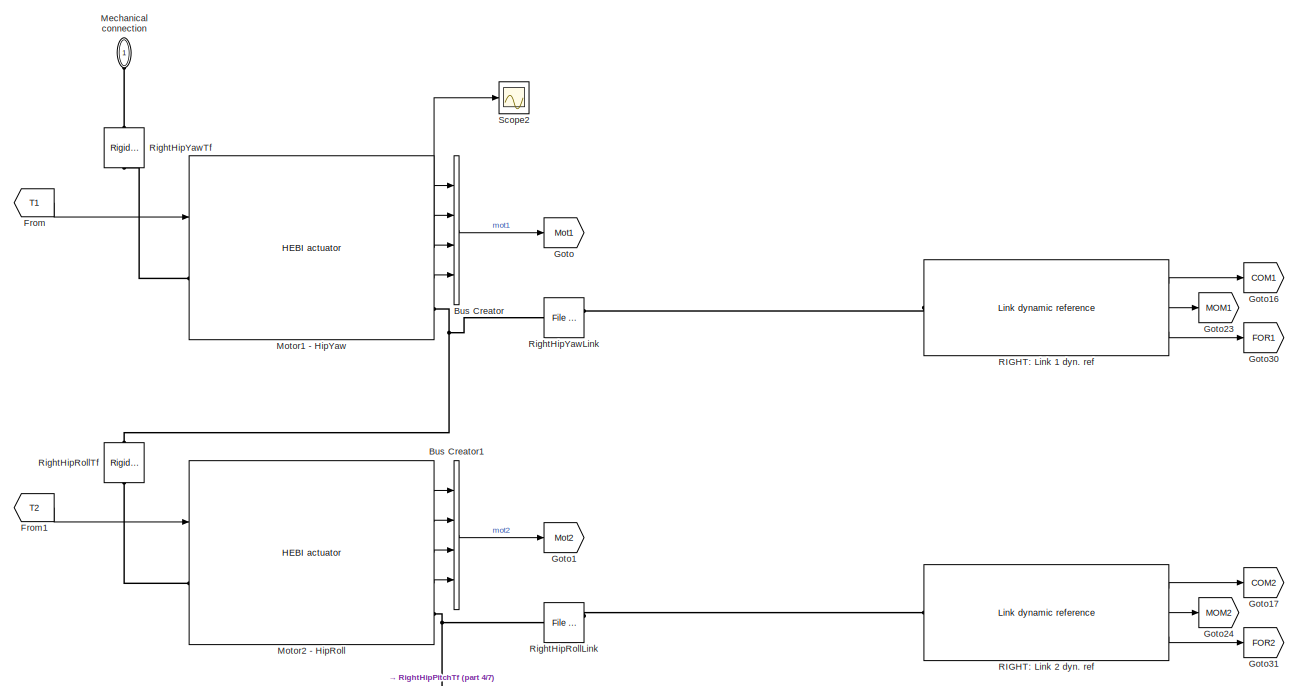
[diagram: Right leg - part 1/7, top right region]
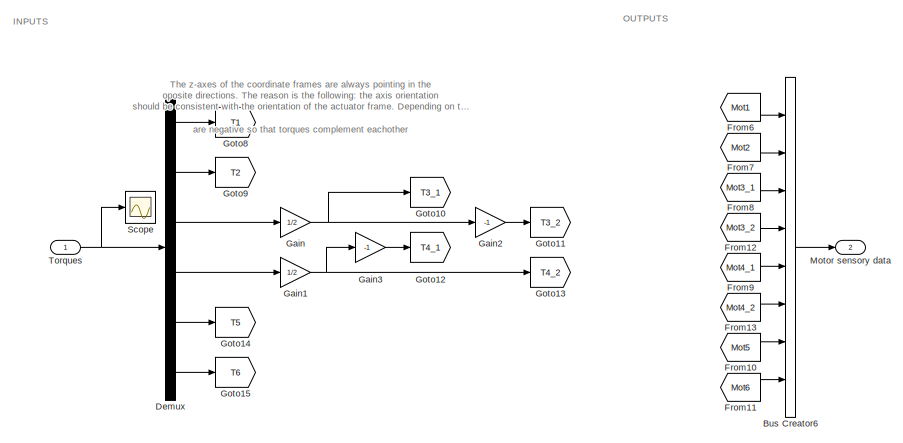
[diagram: Right leg - part 2/7, top left region]
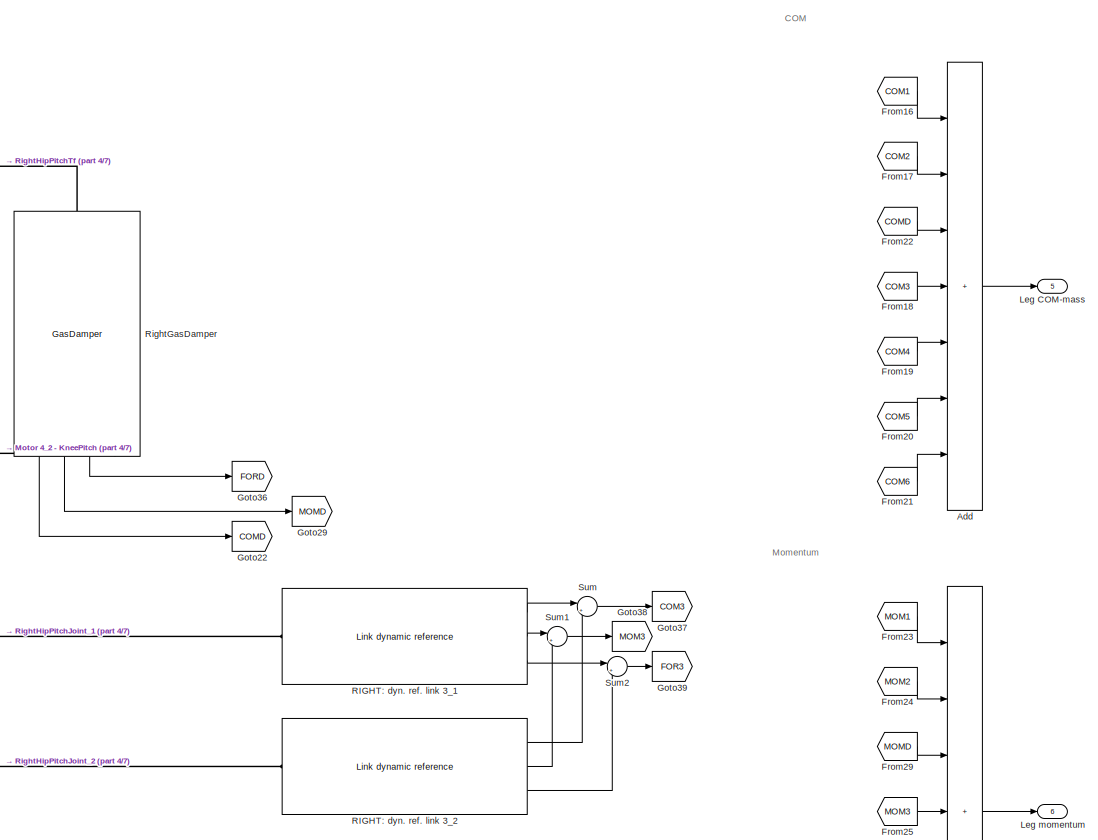
[diagram: Right leg - part 3/7, middle right region]
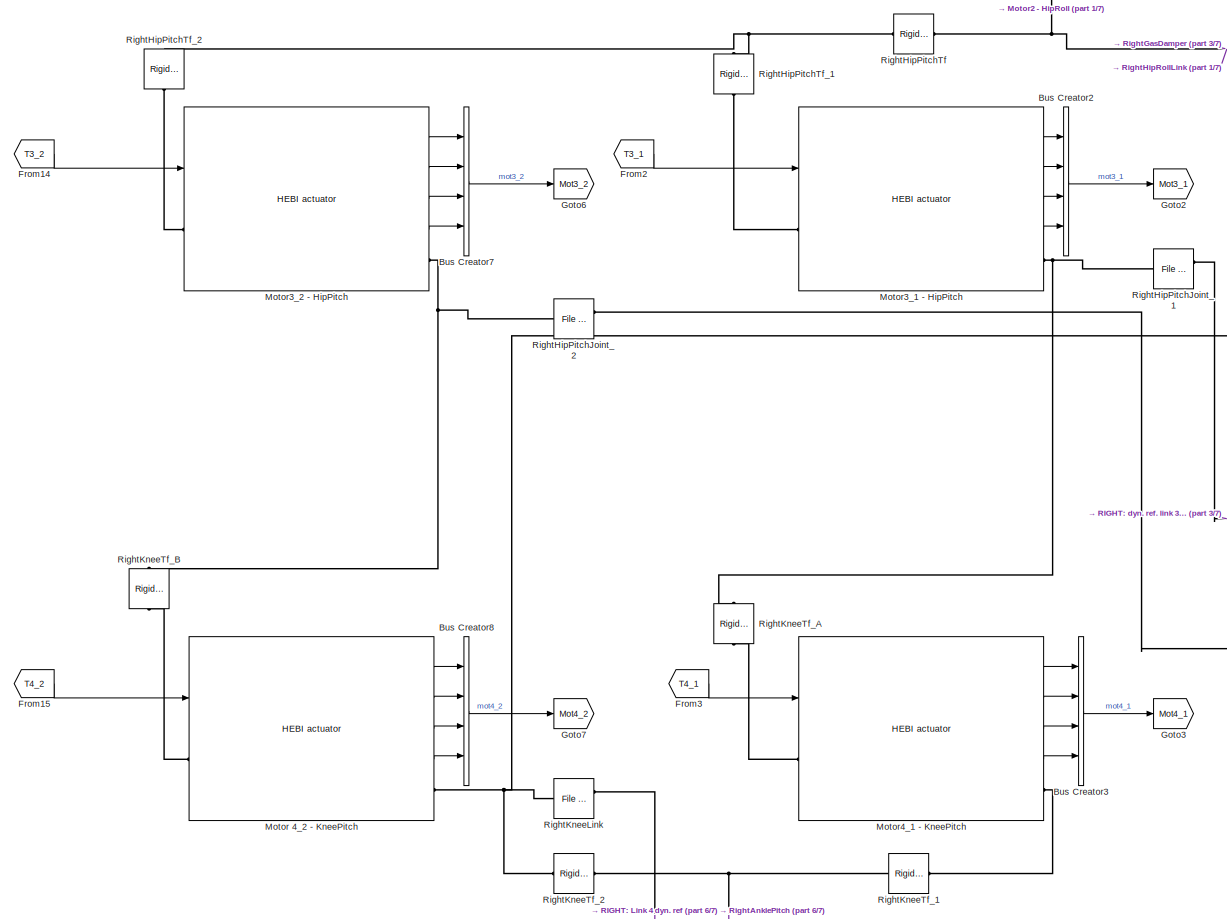
[diagram: Right leg - part 4/7, central region]
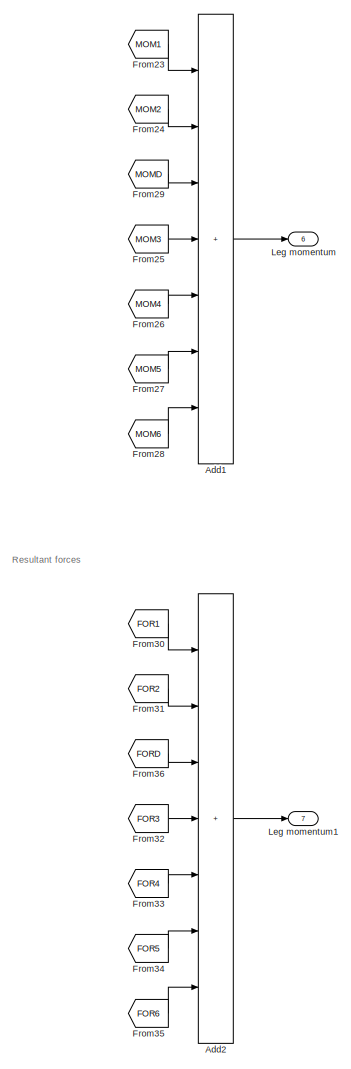
[diagram: Right leg - part 5/7, middle right region]
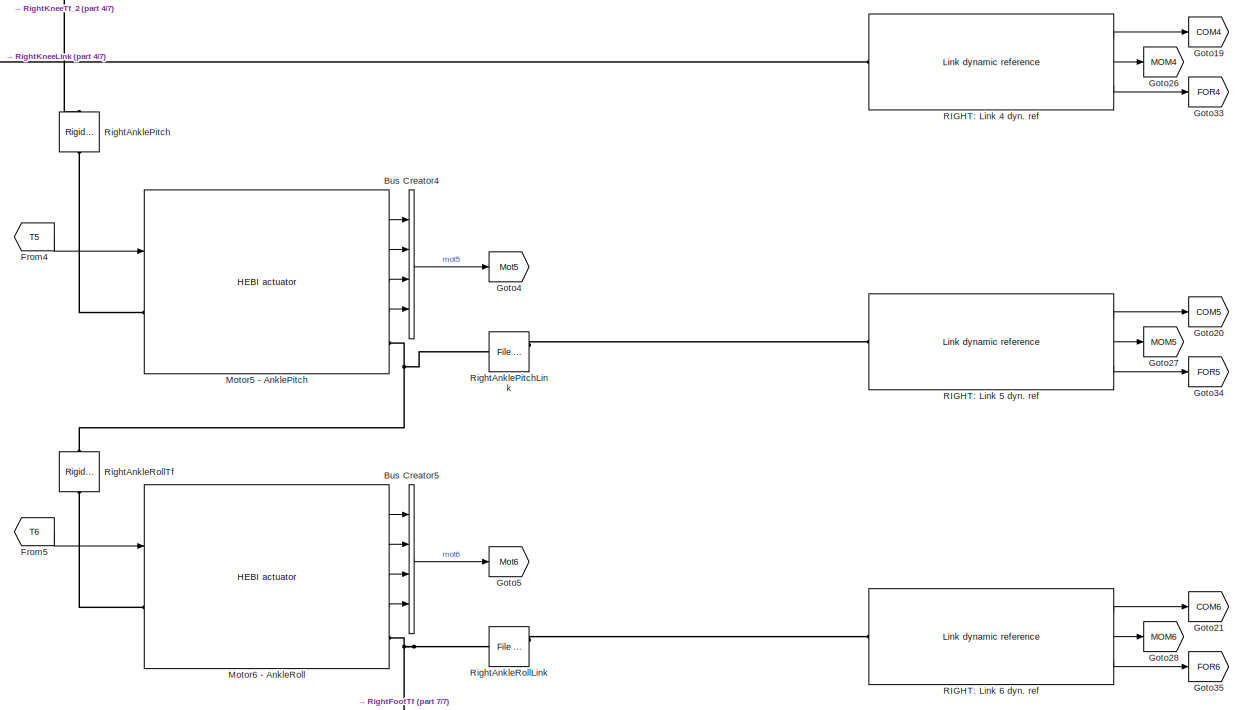
[diagram: Right leg - part 6/7, bottom right region]
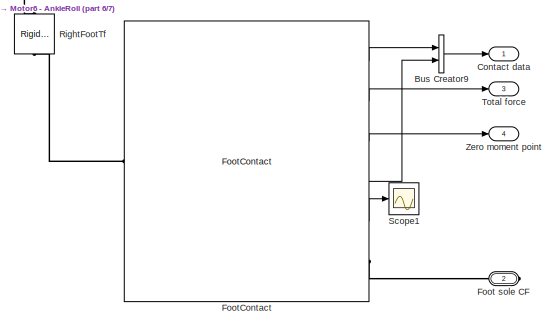
[diagram: Right leg - part 7/7, bottom right region]
BLOCK [SubSystem] Right leg
  NameLocation = top
  Ports = [1, 7, 0, 0, 0, 1, 1]
  RequestExecContextInheritance = off
BLOCK [Sum] Right leg/Add
  IconShape = rectangular
  Inputs = 7
  Ports = [7, 1]
BLOCK [Sum] Right leg/Add1
  IconShape = rectangular
  Inputs = 7
  Ports = [7, 1]
BLOCK [Sum] Right leg/Add2
  IconShape = rectangular
  Inputs = 7
  Ports = [7, 1]
BLOCK [BusCreator] Right leg/Bus Creator
  DisplayOption = bar
  InheritFromInputs = on
  Inputs = 4
  Ports = [4, 1]
BLOCK [BusCreator] Right leg/Bus Creator1
  DisplayOption = bar
  InheritFromInputs = on
  Inputs = 4
  Ports = [4, 1]
BLOCK [BusCreator] Right leg/Bus Creator2
  DisplayOption = bar
  InheritFromInputs = on
  Inputs = 4
  Ports = [4, 1]
BLOCK [BusCreator] Right leg/Bus Creator3
  DisplayOption = bar
  InheritFromInputs = on
  Inputs = 4
  Ports = [4, 1]
BLOCK [BusCreator] Right leg/Bus Creator4
  DisplayOption = bar
  InheritFromInputs = on
  Inputs = 4
  Ports = [4, 1]
BLOCK [BusCreator] Right leg/Bus Creator5
  DisplayOption = bar
  InheritFromInputs = on
  Inputs = 4
  Ports = [4, 1]
BLOCK [BusCreator] Right leg/Bus Creator6
  DisplayOption = bar
  InheritFromInputs = on
  Inputs = 8
  OutDataTypeStr = Bus: leg_str_bus
  Ports = [8, 1]
BLOCK [BusCreator] Right leg/Bus Creator7
  DisplayOption = bar
  InheritFromInputs = on
  Inputs = 4
  Ports = [4, 1]
BLOCK [BusCreator] Right leg/Bus Creator8
  DisplayOption = bar
  InheritFromInputs = on
  Inputs = 4
  Ports = [4, 1]
BLOCK [BusCreator] Right leg/Bus Creator9
  DisplayOption = bar
  InheritFromInputs = on
  Inputs = 2
  Ports = [2, 1]
BLOCK [Outport] Right leg/Contact data
BLOCK [Demux] Right leg/Demux
  Outputs = 6
  Ports = [1, 6]
BLOCK [PMIOPort] Right leg/Foot sole CF
  Port = 2
  Side = Right
BLOCK [Reference] Right leg/FootContact  REF=biped_lib/FootContact  (lib defined in slx_0986bfd27444)
  Ports = [0, 5, 0, 0, 0, 1, 1]
  SourceBlock = biped_lib/FootContact
BLOCK [From] Right leg/From
  GotoTag = T1
BLOCK [From] Right leg/From1
  GotoTag = T2
BLOCK [From] Right leg/From10
  GotoTag = Mot5
BLOCK [From] Right leg/From11
  GotoTag = Mot6
BLOCK [From] Right leg/From12
  GotoTag = Mot3_2
BLOCK [From] Right leg/From13
  GotoTag = Mot4_2
BLOCK [From] Right leg/From14
  GotoTag = T3_2
BLOCK [From] Right leg/From15
  GotoTag = T4_2
BLOCK [From] Right leg/From16
  GotoTag = COM1
BLOCK [From] Right leg/From17
  GotoTag = COM2
BLOCK [From] Right leg/From18
  GotoTag = COM3
BLOCK [From] Right leg/From19
  GotoTag = COM4
BLOCK [From] Right leg/From2
  GotoTag = T3_1
BLOCK [From] Right leg/From20
  GotoTag = COM5
BLOCK [From] Right leg/From21
  GotoTag = COM6
BLOCK [From] Right leg/From22
  GotoTag = COMD
BLOCK [From] Right leg/From23
  GotoTag = MOM1
BLOCK [From] Right leg/From24
  GotoTag = MOM2
BLOCK [From] Right leg/From25
  GotoTag = MOM3
BLOCK [From] Right leg/From26
  GotoTag = MOM4
BLOCK [From] Right leg/From27
  GotoTag = MOM5
BLOCK [From] Right leg/From28
  GotoTag = MOM6
BLOCK [From] Right leg/From29
  GotoTag = MOMD
BLOCK [From] Right leg/From3
  GotoTag = T4_1
BLOCK [From] Right leg/From30
  GotoTag = FOR1
BLOCK [From] Right leg/From31
  GotoTag = FOR2
BLOCK [From] Right leg/From32
  GotoTag = FOR3
BLOCK [From] Right leg/From33
  GotoTag = FOR4
BLOCK [From] Right leg/From34
  GotoTag = FOR5
BLOCK [From] Right leg/From35
  GotoTag = FOR6
BLOCK [From] Right leg/From36
  GotoTag = FORD
BLOCK [From] Right leg/From4
  GotoTag = T5
BLOCK [From] Right leg/From5
  GotoTag = T6
BLOCK [From] Right leg/From6
  GotoTag = Mot1
BLOCK [From] Right leg/From7
  GotoTag = Mot2
BLOCK [From] Right leg/From8
  GotoTag = Mot3_1
BLOCK [From] Right leg/From9
  GotoTag = Mot4_1
BLOCK [Gain] Right leg/Gain
  Gain = 1/2
BLOCK [Gain] Right leg/Gain1
  Gain = 1/2
BLOCK [Gain] Right leg/Gain2
  Gain = -1
BLOCK [Gain] Right leg/Gain3
  Gain = -1
BLOCK [Goto] Right leg/Goto
  GotoTag = Mot1
BLOCK [Goto] Right leg/Goto1
  GotoTag = Mot2
BLOCK [Goto] Right leg/Goto10
  GotoTag = T3_1
BLOCK [Goto] Right leg/Goto11
  GotoTag = T3_2
BLOCK [Goto] Right leg/Goto12
  GotoTag = T4_1
BLOCK [Goto] Right leg/Goto13
  GotoTag = T4_2
BLOCK [Goto] Right leg/Goto14
  GotoTag = T5
BLOCK [Goto] Right leg/Goto15
  GotoTag = T6
BLOCK [Goto] Right leg/Goto16
  GotoTag = COM1
BLOCK [Goto] Right leg/Goto17
  GotoTag = COM2
BLOCK [Goto] Right leg/Goto19
  GotoTag = COM4
BLOCK [Goto] Right leg/Goto2
  GotoTag = Mot3_1
BLOCK [Goto] Right leg/Goto20
  GotoTag = COM5
BLOCK [Goto] Right leg/Goto21
  GotoTag = COM6
BLOCK [Goto] Right leg/Goto22
  GotoTag = COMD
BLOCK [Goto] Right leg/Goto23
  GotoTag = MOM1
BLOCK [Goto] Right leg/Goto24
  GotoTag = MOM2
BLOCK [Goto] Right leg/Goto26
  GotoTag = MOM4
BLOCK [Goto] Right leg/Goto27
  GotoTag = MOM5
BLOCK [Goto] Right leg/Goto28
  GotoTag = MOM6
BLOCK [Goto] Right leg/Goto29
  GotoTag = MOMD
BLOCK [Goto] Right leg/Goto3
  GotoTag = Mot4_1
BLOCK [Goto] Right leg/Goto30
  GotoTag = FOR1
BLOCK [Goto] Right leg/Goto31
  GotoTag = FOR2
BLOCK [Goto] Right leg/Goto33
  GotoTag = FOR4
BLOCK [Goto] Right leg/Goto34
  GotoTag = FOR5
BLOCK [Goto] Right leg/Goto35
  GotoTag = FOR6
BLOCK [Goto] Right leg/Goto36
  GotoTag = FORD
BLOCK [Goto] Right leg/Goto37
  GotoTag = COM3
BLOCK [Goto] Right leg/Goto38
  GotoTag = MOM3
BLOCK [Goto] Right leg/Goto39
  GotoTag = FOR3
BLOCK [Goto] Right leg/Goto4
  GotoTag = Mot5
BLOCK [Goto] Right leg/Goto5
  GotoTag = Mot6
BLOCK [Goto] Right leg/Goto6
  GotoTag = Mot3_2
BLOCK [Goto] Right leg/Goto7
  GotoTag = Mot4_2
BLOCK [Goto] Right leg/Goto8
  GotoTag = T1
BLOCK [Goto] Right leg/Goto9
  GotoTag = T2
BLOCK [Outport] Right leg/Leg COM-mass
  Port = 5
BLOCK [Outport] Right leg/Leg momentum
  Port = 6
BLOCK [Outport] Right leg/Leg momentum1
  Port = 7
BLOCK [PMIOPort] Right leg/Mechanical connection
  NameLocation = right
  Side = Left
BLOCK [Reference] Right leg/Motor 4_2 - KneePitch  REF=biped_lib/HEBI actuator  (lib defined in slx_0986bfd27444)
  Ports = [1, 4, 0, 0, 0, 1, 1]
  SourceBlock = biped_lib/HEBI actuator
BLOCK [Outport] Right leg/Motor sensory data
  Port = 2
BLOCK [Reference] Right leg/Motor1 - HipYaw  REF=biped_lib/HEBI actuator  (lib defined in slx_0986bfd27444)
  Ports = [1, 4, 0, 0, 0, 1, 1]
  SourceBlock = biped_lib/HEBI actuator
BLOCK [Reference] Right leg/Motor2 - HipRoll  REF=biped_lib/HEBI actuator  (lib defined in slx_0986bfd27444)
  Ports = [1, 4, 0, 0, 0, 1, 1]
  SourceBlock = biped_lib/HEBI actuator
BLOCK [Reference] Right leg/Motor3_1 - HipPitch  REF=biped_lib/HEBI actuator  (lib defined in slx_0986bfd27444)
  Ports = [1, 4, 0, 0, 0, 1, 1]
  SourceBlock = biped_lib/HEBI actuator
BLOCK [Reference] Right leg/Motor3_2 - HipPitch  REF=biped_lib/HEBI actuator  (lib defined in slx_0986bfd27444)
  Ports = [1, 4, 0, 0, 0, 1, 1]
  SourceBlock = biped_lib/HEBI actuator
BLOCK [Reference] Right leg/Motor4_1 - KneePitch  REF=biped_lib/HEBI actuator  (lib defined in slx_0986bfd27444)
  Ports = [1, 4, 0, 0, 0, 1, 1]
  SourceBlock = biped_lib/HEBI actuator
BLOCK [Reference] Right leg/Motor5 - AnklePitch  REF=biped_lib/HEBI actuator  (lib defined in slx_0986bfd27444)
  Ports = [1, 4, 0, 0, 0, 1, 1]
  SourceBlock = biped_lib/HEBI actuator
BLOCK [Reference] Right leg/Motor6 - AnkleRoll  REF=biped_lib/HEBI actuator  (lib defined in slx_0986bfd27444)
  Ports = [1, 4, 0, 0, 0, 1, 1]
  SourceBlock = biped_lib/HEBI actuator
BLOCK [Reference] Right leg/RIGHT: Link 1 dyn. ref  REF=biped_lib/Link dynamic reference  (lib defined in slx_0986bfd27444)
  Ports = [0, 3, 0, 0, 0, 1]
  SourceBlock = biped_lib/Link dynamic reference
BLOCK [Reference] Right leg/RIGHT: Link 2 dyn. ref  REF=biped_lib/Link dynamic reference  (lib defined in slx_0986bfd27444)
  Ports = [0, 3, 0, 0, 0, 1]
  SourceBlock = biped_lib/Link dynamic reference
BLOCK [Reference] Right leg/RIGHT: Link 4 dyn. ref  REF=biped_lib/Link dynamic reference  (lib defined in slx_0986bfd27444)
  Ports = [0, 3, 0, 0, 0, 1]
  SourceBlock = biped_lib/Link dynamic reference
BLOCK [Reference] Right leg/RIGHT: Link 5 dyn. ref  REF=biped_lib/Link dynamic reference  (lib defined in slx_0986bfd27444)
  Ports = [0, 3, 0, 0, 0, 1]
  SourceBlock = biped_lib/Link dynamic reference
BLOCK [Reference] Right leg/RIGHT: Link 6 dyn. ref  REF=biped_lib/Link dynamic reference  (lib defined in slx_0986bfd27444)
  Ports = [0, 3, 0, 0, 0, 1]
  SourceBlock = biped_lib/Link dynamic reference
BLOCK [Reference] Right leg/RIGHT: dyn. ref. link 3_1  REF=biped_lib/Link dynamic reference  (lib defined in slx_0986bfd27444)
  Ports = [0, 3, 0, 0, 0, 1]
  SourceBlock = biped_lib/Link dynamic reference
BLOCK [Reference] Right leg/RIGHT: dyn. ref. link 3_2  REF=biped_lib/Link dynamic reference  (lib defined in slx_0986bfd27444)
  Ports = [0, 3, 0, 0, 0, 1]
  SourceBlock = biped_lib/Link dynamic reference
BLOCK [Reference] Right leg/RightAnklePitch  REF=sm_lib/Frames and
Transforms/Rigid
Transform
  NameLocation = left
  Ports = [0, 0, 0, 0, 0, 1, 1]
  SourceBlock = sm_lib/Frames and\nTransforms/Rigid\nTransform
  SourceProductBaseCode = MS
  SourceType = Rigid\nTransform
BLOCK [Reference] Right leg/RightAnklePitchLink  REF=sm_lib/Body Elements/File Solid
  NameLocation = top
  Ports = [0, 0, 0, 0, 0, 2, 1]
  SourceBlock = sm_lib/Body Elements/File Solid
  SourceProductBaseCode = MS
  SourceType = File Solid
BLOCK [Reference] Right leg/RightAnkleRollLink  REF=sm_lib/Body Elements/File Solid
  NameLocation = top
  Ports = [0, 0, 0, 0, 0, 2, 1]
  SourceBlock = sm_lib/Body Elements/File Solid
  SourceProductBaseCode = MS
  SourceType = File Solid
BLOCK [Reference] Right leg/RightAnkleRollTf  REF=sm_lib/Frames and
Transforms/Rigid
Transform
  NameLocation = left
  Ports = [0, 0, 0, 0, 0, 1, 1]
  SourceBlock = sm_lib/Frames and\nTransforms/Rigid\nTransform
  SourceProductBaseCode = MS
  SourceType = Rigid\nTransform
BLOCK [Reference] Right leg/RightFootTf  REF=sm_lib/Frames and
Transforms/Rigid
Transform
  NameLocation = left
  Ports = [0, 0, 0, 0, 0, 1, 1]
  SourceBlock = sm_lib/Frames and\nTransforms/Rigid\nTransform
  SourceProductBaseCode = MS
  SourceType = Rigid\nTransform
BLOCK [Reference] Right leg/RightGasDamper  REF=biped_lib/GasDamper  (lib defined in slx_0986bfd27444)
  NameLocation = right
  Ports = [0, 3, 0, 0, 0, 1, 1]
  SourceBlock = biped_lib/GasDamper
BLOCK [Reference] Right leg/RightHipPitchJoint_1  REF=sm_lib/Body Elements/File Solid
  NameLocation = top
  Ports = [0, 0, 0, 0, 0, 2, 1]
  SourceBlock = sm_lib/Body Elements/File Solid
  SourceProductBaseCode = MS
  SourceType = File Solid
BLOCK [Reference] Right leg/RightHipPitchJoint_2  REF=sm_lib/Body Elements/File Solid
  NameLocation = top
  Ports = [0, 0, 0, 0, 0, 2, 1]
  SourceBlock = sm_lib/Body Elements/File Solid
  SourceProductBaseCode = MS
  SourceType = File Solid
BLOCK [Reference] Right leg/RightHipPitchTf  REF=sm_lib/Frames and
Transforms/Rigid
Transform
  NameLocation = top
  Ports = [0, 0, 0, 0, 0, 1, 1]
  SourceBlock = sm_lib/Frames and\nTransforms/Rigid\nTransform
  SourceProductBaseCode = MS
  SourceType = Rigid\nTransform
BLOCK [Reference] Right leg/RightHipPitchTf_1  REF=sm_lib/Frames and
Transforms/Rigid
Transform
  NameLocation = left
  Ports = [0, 0, 0, 0, 0, 1, 1]
  SourceBlock = sm_lib/Frames and\nTransforms/Rigid\nTransform
  SourceProductBaseCode = MS
  SourceType = Rigid\nTransform
BLOCK [Reference] Right leg/RightHipPitchTf_2  REF=sm_lib/Frames and
Transforms/Rigid
Transform
  NameLocation = left
  Ports = [0, 0, 0, 0, 0, 1, 1]
  SourceBlock = sm_lib/Frames and\nTransforms/Rigid\nTransform
  SourceProductBaseCode = MS
  SourceType = Rigid\nTransform
BLOCK [Reference] Right leg/RightHipRollLink  REF=sm_lib/Body Elements/File Solid
  NameLocation = top
  Ports = [0, 0, 0, 0, 0, 2, 1]
  SourceBlock = sm_lib/Body Elements/File Solid
  SourceProductBaseCode = MS
  SourceType = File Solid
BLOCK [Reference] Right leg/RightHipRollTf  REF=sm_lib/Frames and
Transforms/Rigid
Transform
  NameLocation = left
  Ports = [0, 0, 0, 0, 0, 1, 1]
  SourceBlock = sm_lib/Frames and\nTransforms/Rigid\nTransform
  SourceProductBaseCode = MS
  SourceType = Rigid\nTransform
BLOCK [Reference] Right leg/RightHipYawLink  REF=sm_lib/Body Elements/File Solid
  NameLocation = top
  Ports = [0, 0, 0, 0, 0, 2, 1]
  SourceBlock = sm_lib/Body Elements/File Solid
  SourceProductBaseCode = MS
  SourceType = File Solid
BLOCK [Reference] Right leg/RightHipYawTf  REF=sm_lib/Frames and
Transforms/Rigid
Transform
  NameLocation = left
  Ports = [0, 0, 0, 0, 0, 1, 1]
  SourceBlock = sm_lib/Frames and\nTransforms/Rigid\nTransform
  SourceProductBaseCode = MS
  SourceType = Rigid\nTransform
BLOCK [Reference] Right leg/RightKneeLink  REF=sm_lib/Body Elements/File Solid
  NameLocation = top
  Ports = [0, 0, 0, 0, 0, 2, 1]
  SourceBlock = sm_lib/Body Elements/File Solid
  SourceProductBaseCode = MS
  SourceType = File Solid
BLOCK [Reference] Right leg/RightKneeTf_1  REF=sm_lib/Frames and
Transforms/Rigid
Transform
  Ports = [0, 0, 0, 0, 0, 1, 1]
  SourceBlock = sm_lib/Frames and\nTransforms/Rigid\nTransform
  SourceProductBaseCode = MS
  SourceType = Rigid\nTransform
BLOCK [Reference] Right leg/RightKneeTf_2  REF=sm_lib/Frames and
Transforms/Rigid
Transform
  Ports = [0, 0, 0, 0, 0, 1, 1]
  SourceBlock = sm_lib/Frames and\nTransforms/Rigid\nTransform
  SourceProductBaseCode = MS
  SourceType = Rigid\nTransform
BLOCK [Reference] Right leg/RightKneeTf_A  REF=sm_lib/Frames and
Transforms/Rigid
Transform
  NameLocation = left
  Ports = [0, 0, 0, 0, 0, 1, 1]
  SourceBlock = sm_lib/Frames and\nTransforms/Rigid\nTransform
  SourceProductBaseCode = MS
  SourceType = Rigid\nTransform
BLOCK [Reference] Right leg/RightKneeTf_B  REF=sm_lib/Frames and
Transforms/Rigid
Transform
  NameLocation = left
  Ports = [0, 0, 0, 0, 0, 1, 1]
  SourceBlock = sm_lib/Frames and\nTransforms/Rigid\nTransform
  SourceProductBaseCode = MS
  SourceType = Rigid\nTransform
BLOCK [Scope] Right leg/Scope
  Floating = off
  NumInputPorts = 1
  Ports = [1]
  ScopeSpecificationString = Simulink.scopes.TimeScopeBlockCfg('CurrentConfiguration', extmgr.ConfigurationSet(extmgr.Configuration('Core','General UI',true),extmgr.Configuration('Core','Source UI',true),extmgr.Configuration('Sources','WiredSimulink',true,'DataLoggingVariableName','ScopeData3'),extmgr.Configuration('Visuals','Time Domain',true,'SerializedDisplays',{struct('MinYLimReal','-9.46716','MaxYLimReal','7.35302','YLab...<+1497ch>
BLOCK [Scope] Right leg/Scope1
  Floating = off
  NumInputPorts = 1
  Ports = [1]
  ScopeSpecificationString = Simulink.scopes.TimeScopeBlockCfg('CurrentConfiguration', extmgr.ConfigurationSet(extmgr.Configuration('Core','General UI',true),extmgr.Configuration('Core','Source UI',true),extmgr.Configuration('Sources','WiredSimulink',true,'DataLoggingVariableName','ScopeData2'),extmgr.Configuration('Visuals','Time Domain',true,'SerializedDisplays',{struct('MinYLimReal','-10.63007','MaxYLimReal','120.34064','Y...<+1509ch>
BLOCK [Scope] Right leg/Scope2
  Floating = off
  NumInputPorts = 1
  Ports = [1]
  ScopeSpecificationString = Simulink.scopes.TimeScopeBlockCfg('CurrentConfiguration', extmgr.ConfigurationSet(extmgr.Configuration('Core','General UI',true),extmgr.Configuration('Core','Source UI',true),extmgr.Configuration('Sources','WiredSimulink',true,'DataLoggingVariableName','ScopeData2'),extmgr.Configuration('Visuals','Time Domain',true,'SerializedDisplays',{struct('MinYLimReal','-14.05902','MaxYLimReal','13.84031','YL...<+1496ch>
BLOCK [Sum] Right leg/Sum
  Inputs = |++
  Ports = [2, 1]
BLOCK [Sum] Right leg/Sum1
  Inputs = |++
  Ports = [2, 1]
BLOCK [Sum] Right leg/Sum2
  Inputs = |++
  Ports = [2, 1]
BLOCK [Inport] Right leg/Torques
BLOCK [Outport] Right leg/Total force
  Port = 3
BLOCK [Outport] Right leg/Zero moment point
  Port = 4
BLOCK [SubSystem] Robot base relation to environment
  Ports = [0, 5, 0, 0, 0, 1, 2]
  RequestExecContextInheritance = off
BLOCK [Reference] Robot base relation to environment/6-DOF Joint  REF=sm_lib/Joints/6-DOF Joint
  Ports = [0, 0, 0, 0, 0, 1, 1]
  SourceBlock = sm_lib/Joints/6-DOF Joint
  SourceProductBaseCode = MS
  SourceType = 6-DOF Joint
BLOCK [PMIOPort] Robot base relation to environment/6DOF joint
  Port = 2
  Side = Right
BLOCK [Outport] Robot base relation to environment/Base COM-mass
BLOCK [Outport] Robot base relation to environment/Base forces
  Port = 3
BLOCK [Reference] Robot base relation to environment/Base link dynamic reference  REF=biped_lib/Link dynamic reference  (lib defined in slx_0986bfd27444)
  Ports = [0, 3, 0, 0, 0, 1]
  SourceBlock = biped_lib/Link dynamic reference
BLOCK [Outport] Robot base relation to environment/Base momentum
  Port = 2
BLOCK [Reference] Robot base relation to environment/Body constraints  REF=Contact_Forces_Lib/3D/Composite
Forces/Face to Plane Force
  Ports = [0, 1, 0, 0, 0, 1, 1]
  SourceBlock = Contact_Forces_Lib/3D/Composite\nForces/Face to Plane Force
  SourceProductName = Simscape Multibody Contact Forces Library
  SourceType = Face to Plane Force
BLOCK [Reference] Robot base relation to environment/Floor  REF=sm_lib/Body Elements/Brick Solid
  NameLocation = left
  Ports = [0, 0, 0, 0, 0, 0, 1]
  SourceBlock = sm_lib/Body Elements/Brick Solid
  SourceProductName = Multibody
  SourceType = Brick Solid
BLOCK [PMIOPort] Robot base relation to environment/Floor CF
  Port = 3
  Side = Right
BLOCK [Mux] Robot base relation to environment/Mux
  DisplayOption = bar
  Inputs = 3
  Ports = [3, 1]
BLOCK [Reference] Robot base relation to environment/PS-Simulink Converter1  REF=nesl_utility/PS-Simulink
Converter
  Ports = [0, 1, 0, 0, 0, 1]
  SourceBlock = nesl_utility/PS-Simulink\nConverter
  SourceProductBaseCode = SS
  SourceType = PS-Simulink\nConverter
BLOCK [Reference] Robot base relation to environment/PS-Simulink Converter2  REF=nesl_utility/PS-Simulink
Converter
  Ports = [0, 1, 0, 0, 0, 1]
  SourceBlock = nesl_utility/PS-Simulink\nConverter
  SourceProductBaseCode = SS
  SourceType = PS-Simulink\nConverter
BLOCK [Reference] Robot base relation to environment/PS-Simulink Converter3  REF=nesl_utility/PS-Simulink
Converter
  Ports = [0, 1, 0, 0, 0, 1]
  SourceBlock = nesl_utility/PS-Simulink\nConverter
  SourceProductBaseCode = SS
  SourceType = PS-Simulink\nConverter
BLOCK [Reference] Robot base relation to environment/PS-Simulink Converter4  REF=nesl_utility/PS-Simulink
Converter
  Ports = [0, 1, 0, 0, 0, 1]
  SourceBlock = nesl_utility/PS-Simulink\nConverter
  SourceProductBaseCode = SS
  SourceType = PS-Simulink\nConverter
BLOCK [Outport] Robot base relation to environment/Reference base orientation
  Port = 5
BLOCK [Outport] Robot base relation to environment/Reference base translation
  Port = 4
BLOCK [Reference] Robot base relation to environment/Rigid Transform  REF=sm_lib/Frames and
Transforms/Rigid
Transform
  Ports = [0, 0, 0, 0, 0, 1, 1]
  SourceBlock = sm_lib/Frames and\nTransforms/Rigid\nTransform
  SourceProductBaseCode = MS
  SourceType = Rigid\nTransform
BLOCK [Reference] Robot base relation to environment/Robot base  REF=sm_lib/Body Elements/File Solid
  NameLocation = left
  Ports = [0, 0, 0, 0, 0, 2, 1]
  SourceBlock = sm_lib/Body Elements/File Solid
  SourceProductBaseCode = MS
  SourceType = File Solid
BLOCK [Reference] Robot base relation to environment/ShiftFloor1  REF=sm_lib/Frames and
Transforms/Rigid
Transform
  NameLocation = left
  Ports = [0, 0, 0, 0, 0, 1, 1]
  SourceBlock = sm_lib/Frames and\nTransforms/Rigid\nTransform
  SourceProductBaseCode = MS
  SourceType = Rigid\nTransform
BLOCK [Terminator] Robot base relation to environment/Terminator
  NameLocation = top
BLOCK [Reference] Robot base relation to environment/Tf from base to wcf  REF=sm_lib/Frames and
Transforms/Transform
Sensor
  Ports = [0, 0, 0, 0, 0, 1, 5]
  SourceBlock = sm_lib/Frames and\nTransforms/Transform\nSensor
  SourceProductBaseCode = MS
  SourceType = Transform\nSensor
BLOCK [PMIOPort] Robot base relation to environment/World CF
  Side = Left
BLOCK [Scope] Scope
  Commented = on
  Floating = off
  NumInputPorts = 1
  Ports = [1]
  ScopeSpecificationString = Simulink.scopes.TimeScopeBlockCfg('CurrentConfiguration', extmgr.ConfigurationSet(extmgr.Configuration('Core','General UI',true),extmgr.Configuration('Core','Source UI',true),extmgr.Configuration('Sources','WiredSimulink',true),extmgr.Configuration('Visuals','Time Domain',true),extmgr.Configuration('Tools','Plot Navigation',true),extmgr.Configuration('Tools','Measurements',true,'Version','2019b'))...<+19ch>
BLOCK [Scope] Scope1
  Floating = off
  NumInputPorts = 1
  Ports = [1]
  ScopeSpecificationString = Simulink.scopes.TimeScopeBlockCfg('CurrentConfiguration', extmgr.ConfigurationSet(extmgr.Configuration('Core','General UI',true),extmgr.Configuration('Core','Source UI',true),extmgr.Configuration('Sources','WiredSimulink',true,'DataLoggingVariableName','ScopeData1'),extmgr.Configuration('Visuals','Time Domain',true,'SerializedDisplays',{struct('MinYLimReal','-0.08684','MaxYLimReal','0.75497','YLab...<+1549ch>
BLOCK [Selector] Selector
  IndexOptions = Index vector (dialog)
  Indices = [1 2 3]
  InputPortWidth = 6
  OutputSizes = 1
  Ports = [1, 1]
BLOCK [Selector] Selector1
  IndexOptions = Index vector (dialog)
  Indices = [1 2 3]
  InputPortWidth = 6
  OutputSizes = 1
  Ports = [1, 1]
BLOCK [SubSystem] Simulation settings
  Ports = [0, 0, 0, 0, 0, 0, 1]
  RequestExecContextInheritance = off
BLOCK [Reference] Simulation settings/Mechanism Configuration  REF=sm_lib/Utilities/Mechanism
Configuration
  Ports = [0, 0, 0, 0, 0, 0, 1]
  SourceBlock = sm_lib/Utilities/Mechanism\nConfiguration
  SourceProductName = Multibody
  SourceType = Mechanism\nConfiguration
BLOCK [Reference] Simulation settings/Solver Configuration  REF=nesl_utility/Solver
Configuration
  Ports = [0, 0, 0, 0, 0, 0, 1]
  SourceBlock = nesl_utility/Solver\nConfiguration
  SourceProductName = Utilities
  SourceType = Solver\nConfiguration
BLOCK [PMIOPort] Simulation settings/World CF
  Side = Right
BLOCK [Reference] Simulation settings/World Frame  REF=sm_lib/Frames and
Transforms/World Frame
  Ports = [0, 0, 0, 0, 0, 0, 1]
  SourceBlock = sm_lib/Frames and\nTransforms/World Frame
  SourceProductName = Multibody
  SourceType = World Frame
BLOCK [Reference] Simulink-PS Converter  REF=nesl_utility/Simulink-PS
Converter
  Commented = on
  Ports = [1, 0, 0, 0, 0, 0, 1]
  SourceBlock = nesl_utility/Simulink-PS\nConverter
  SourceProductName = Utilities
  SourceType = Simulink-PS\nConverter
BLOCK [Switch] Switch
  Criteria = u2 > Threshold
  InputSameDT = off
  SaturateOnIntegerOverflow = off
BLOCK [Scope] ZMP left and right
  Floating = off
  NumInputPorts = 4
  Ports = [4]
  ScopeSpecificationString = Simulink.scopes.TimeScopeBlockCfg('CurrentConfiguration', extmgr.ConfigurationSet(extmgr.Configuration('Core','General UI',true),extmgr.Configuration('Core','Source UI',true),extmgr.Configuration('Sources','WiredSimulink',true,'DataLoggingVariableName','ScopeData1'),extmgr.Configuration('Visuals','Time Domain',true,'SerializedDisplays',{struct('MinYLimReal','-0.20796','MaxYLimReal','0.20813','YLab...<+1758ch>
ANNOTATION Left Leg: The z-axes of the coordinate frames are always pointing in the oposite directions. The reason is the following: the axis orientation should be consistent with the orientation of the actuator frame. Depending on the orientation of the overall joint, either Ti_1 or Ti_2 are negative so that torques complement eachother
ANNOTATION Left Leg: COM
ANNOTATION Left Leg: INPUTS
ANNOTATION Left Leg: Momentum
ANNOTATION Left Leg: OUTPUTS
ANNOTATION Left Leg: Resultant forces
ANNOTATION Right leg: The z-axes of the coordinate frames are always pointing in the oposite directions. The reason is the following: the axis orientation should be consistent with the orientation of the actuator frame. Depending on the orientation of the overall joint, either Ti_1 or Ti_2 are negative so that torques complement eachother
ANNOTATION Right leg: COM
ANNOTATION Right leg: INPUTS
ANNOTATION Right leg: Momentum
ANNOTATION Right leg: OUTPUTS
ANNOTATION Right leg: Resultant forces
NET Add1:1 -> Derivative:1, Reference momentum around COM:1, Selector:1
NET Add2:1 -> Model based ZMP:2, Resultant wrench around COM:2, Selector1:1
LINE Add:1 -> Normalise COMpos-mass to get COM-position:1
LINE Constant1:1 -> Switch:2
LINE Constant:1 -> Mux1:2
LINE Controller/Bus Creator:1 -> Controller/Unit Delay6:1
LINE Controller/Bus Selector:1 -> Controller/Scope4:1
LINE Controller/Bus Selector:2 -> Controller/Scope5:3
LINE Controller/Bus Selector:3 -> Controller/Scope6:3
LINE Controller/COM reference:1 -> Controller/Unit Delay4:1
LINE Controller/Clock:1 -> Controller/Unit Delay9:1
LINE Controller/Comp:1 -> Controller/Scope2:1
LINE Controller/Comp:2 -> Controller/Scope2:2
LINE Controller/Comp:3 -> Controller/Scope2:3
LINE Controller/Comp:4 -> Controller/Scope3:1
LINE Controller/Comp:5 -> Controller/Scope3:2
LINE Controller/Comp:6 -> Controller/Scope3:3
LINE Controller/Configuration parameters of the controller:1 -> Controller/State Estimation:2
LINE Controller/Constant1:1 -> Controller/Walking controller:13
LINE Controller/Constant2:1 -> Controller/Fl. base est.:7
NET Controller/Constant3:1 -> Controller/Switch1:2, Controller/Switch:2
LINE Controller/Constant4:1 -> Controller/State Estimation:3
LINE Controller/Constant:1 -> Controller/Walking controller:9
NET Controller/Fl. base est.:1 -> Controller/Comp:2, Controller/Switch:3
NET Controller/Fl. base est.:2 -> Controller/Comp:3, Controller/Switch1:3
NET Controller/From Workspace:1 -> Controller/Fl. base est.:6, Controller/Walking controller:12
LINE Controller/Get Jacobian1:1 -> Controller/Bus Creator:2
LINE Controller/Get Jacobian:1 -> Controller/Bus Creator:1
LINE Controller/Get Transform1:1 -> Controller/Bus Creator:4
LINE Controller/Get Transform:1 -> Controller/Bus Creator:3
LINE Controller/Gravity Torque:1 -> Controller/Signal Specification4:1
LINE Controller/Left leg motor force measurement:1 -> Controller/Signal Specification9:1
LINE Controller/Left leg motor sensory data:1 -> Controller/Signal Specification:1
LINE Controller/Measurement points:1 -> Controller/Fl. base est.:9
LINE Controller/Reference base orientation:1 -> Controller/Unit Delay7:1
LINE Controller/Reference base translation:1 -> Controller/Unit Delay8:1
LINE Controller/Reference leg zmp data:1 -> Controller/Unit Delay10:1
LINE Controller/Right leg motor force measurement1:1 -> Controller/Signal Specification10:1
LINE Controller/Right leg motor sensory data:1 -> Controller/Signal Specification1:1
LINE Controller/Selector1:1 -> Controller/Scope5:2
LINE Controller/Selector2:1 -> Controller/Scope6:1
LINE Controller/Selector3:1 -> Controller/Scope6:2
LINE Controller/Selector:1 -> Controller/Scope5:1
NET Controller/Sensor mapping:1 -> Controller/Get Jacobian1:1, Controller/Get Jacobian:1, Controller/Get Transform1:1, Controller/Get Transform:1, Controller/Gravity Torque:1
LINE Controller/Signal Specification10:1 -> Controller/Unit Delay3:1
LINE Controller/Signal Specification11:1 -> Controller/zlglo:1
LINE Controller/Signal Specification12:1 -> Controller/zrglo:1
NET Controller/Signal Specification1:1 -> Controller/Sensor mapping:2, Controller/Unit Delay2:1
LINE Controller/Signal Specification2:1 -> Controller/ZMP ref calc:1
LINE Controller/Signal Specification3:1 -> Controller/ZMP des:1
LINE Controller/Signal Specification4:1 -> Controller/Bus Creator:5
LINE Controller/Signal Specification5:1 -> Controller/ZMP qp:1
LINE Controller/Signal Specification6:1 -> Controller/DCM des:1
LINE Controller/Signal Specification7:1 -> Controller/DCM true:1
LINE Controller/Signal Specification8:1 -> Controller/COM des:1
LINE Controller/Signal Specification9:1 -> Controller/Unit Delay1:1
NET Controller/Signal Specification:1 -> Controller/Sensor mapping:1, Controller/Unit Delay:1
LINE Controller/State Estimation:2 -> Controller/Bus Selector:1
LINE Controller/State Estimation:3 -> Controller/Comp:1
LINE Controller/Switch1:1 -> Controller/Walking controller:11
LINE Controller/Switch:1 -> Controller/Walking controller:10
LINE Controller/Unit Delay10:1 -> Controller/Fl. base est.:8
NET Controller/Unit Delay1:1 -> Controller/Fl. base est.:3, Controller/State Estimation:6, Controller/Walking controller:3
NET Controller/Unit Delay2:1 -> Controller/Fl. base est.:4, Controller/State Estimation:5, Controller/Walking controller:4
NET Controller/Unit Delay3:1 -> Controller/Fl. base est.:5, Controller/State Estimation:7, Controller/Walking controller:5
LINE Controller/Unit Delay4:1 -> Controller/Walking controller:7
NET Controller/Unit Delay5:1 -> Controller/Scope4:2, Controller/Walking controller:6
LINE Controller/Unit Delay6:1 -> Controller/Walking controller:8
NET Controller/Unit Delay7:1 -> Controller/Comp:5, Controller/Switch1:1
NET Controller/Unit Delay8:1 -> Controller/Comp:4, Controller/Switch:1
NET Controller/Unit Delay9:1 -> Controller/Fl. base est.:1, Controller/Walking controller:1
NET Controller/Unit Delay:1 -> Controller/Fl. base est.:2, Controller/State Estimation:4, Controller/Walking controller:2
LINE Controller/Walking controller:1 -> Controller/Left leg torques:1
LINE Controller/Walking controller:10 -> Controller/Scope1:1
LINE Controller/Walking controller:11 -> Controller/Signal Specification11:1
LINE Controller/Walking controller:12 -> Controller/Signal Specification12:1
NET Controller/Walking controller:13 -> Controller/Selector1:1, Controller/Selector2:1, Controller/Selector3:1, Controller/Selector:1
LINE Controller/Walking controller:14 -> Controller/Scope4:3
LINE Controller/Walking controller:2 -> Controller/Right leg torques:1
LINE Controller/Walking controller:3 -> Controller/Signal Specification8:1
LINE Controller/Walking controller:4 -> Controller/Signal Specification3:1
LINE Controller/Walking controller:5 -> Controller/Signal Specification2:1
LINE Controller/Walking controller:6 -> Controller/Signal Specification5:1
LINE Controller/Walking controller:7 -> Controller/Signal Specification6:1
LINE Controller/Walking controller:8 -> Controller/Signal Specification7:1
LINE Controller/Walking controller:9 -> Controller/Scope:1
LINE Controller/ZMP reference:1 -> Controller/Unit Delay5:1
NET Controller:1 -> LLeg Torques:1, Left Leg:1
LINE Controller:10 -> ZMP left and right:4
NET Controller:2 -> RLeg Torques:1, Right leg:1
LINE Controller:3 -> Goto2:1
LINE Controller:4 -> Goto3:1
LINE Controller:5 -> Goto4:1
LINE Controller:6 -> Goto5:1
LINE Controller:7 -> Goto6:1
LINE Controller:8 -> Goto8:1
LINE Controller:9 -> ZMP left and right:3
LINE Derivative:1 -> Resultant wrench around COM:1
LINE From1:1 -> Plots:2
LINE From2:1 -> Plots:3
LINE From3:1 -> Plots:4
LINE From4:1 -> Plots:5
LINE From5:1 -> Plots:6
LINE From6:1 -> Plots:7
LINE From7:1 -> Plots:8
LINE From8:1 -> Plots:9
LINE From:1 -> Plots:1
LINE Left Leg/Add1:1 -> Left Leg/Leg momentum:1
LINE Left Leg/Add2:1 -> Left Leg/Leg momentum1:1
LINE Left Leg/Add:1 -> Left Leg/Leg COM-mass:1
LINE Left Leg/Bus Creator1:1 -> Left Leg/Goto1:1
LINE Left Leg/Bus Creator2:1 -> Left Leg/Goto2:1
LINE Left Leg/Bus Creator3:1 -> Left Leg/Goto3:1
LINE Left Leg/Bus Creator4:1 -> Left Leg/Goto4:1
LINE Left Leg/Bus Creator5:1 -> Left Leg/Goto5:1
LINE Left Leg/Bus Creator6:1 -> Left Leg/Motor sensory data:1
LINE Left Leg/Bus Creator7:1 -> Left Leg/Goto6:1
LINE Left Leg/Bus Creator8:1 -> Left Leg/Goto7:1
LINE Left Leg/Bus Creator9:1 -> Left Leg/Contact data:1
LINE Left Leg/Bus Creator:1 -> Left Leg/Goto:1
LINE Left Leg/Demux:1 -> Left Leg/Goto8:1
LINE Left Leg/Demux:2 -> Left Leg/Goto9:1
LINE Left Leg/Demux:3 -> Left Leg/Gain:1
LINE Left Leg/Demux:4 -> Left Leg/Gain1:1
LINE Left Leg/Demux:5 -> Left Leg/Goto14:1
LINE Left Leg/Demux:6 -> Left Leg/Goto15:1
LINE Left Leg/FootContact:1 -> Left Leg/Bus Creator9:1
LINE Left Leg/FootContact:2 -> Left Leg/Total force:1
LINE Left Leg/FootContact:3 -> Left Leg/Zero moment point:1
LINE Left Leg/FootContact:4 -> Left Leg/Bus Creator9:2
LINE Left Leg/FootContact:5 -> Left Leg/Scope1:1
LINE Left Leg/From10:1 -> Left Leg/Bus Creator6:7
LINE Left Leg/From11:1 -> Left Leg/Bus Creator6:8
LINE Left Leg/From12:1 -> Left Leg/Bus Creator6:4
LINE Left Leg/From13:1 -> Left Leg/Bus Creator6:6
LINE Left Leg/From14:1 -> Left Leg/Motor 3_2 - HipPitch:1
LINE Left Leg/From15:1 -> Left Leg/Motor 4_2 - KneePitch:1
LINE Left Leg/From16:1 -> Left Leg/Add:1
LINE Left Leg/From17:1 -> Left Leg/Add:2
LINE Left Leg/From18:1 -> Left Leg/Add:4
LINE Left Leg/From19:1 -> Left Leg/Add:5
LINE Left Leg/From1:1 -> Left Leg/Motor 2 - HipRoll:1
LINE Left Leg/From20:1 -> Left Leg/Add:6
LINE Left Leg/From21:1 -> Left Leg/Add:7
LINE Left Leg/From22:1 -> Left Leg/Add:3
LINE Left Leg/From23:1 -> Left Leg/Add1:1
LINE Left Leg/From24:1 -> Left Leg/Add1:2
LINE Left Leg/From25:1 -> Left Leg/Add1:4
LINE Left Leg/From26:1 -> Left Leg/Add1:5
LINE Left Leg/From27:1 -> Left Leg/Add1:6
LINE Left Leg/From28:1 -> Left Leg/Add1:7
LINE Left Leg/From29:1 -> Left Leg/Add1:3
LINE Left Leg/From2:1 -> Left Leg/Motor 3_1 - HipPitch:1
LINE Left Leg/From30:1 -> Left Leg/Add2:1
LINE Left Leg/From31:1 -> Left Leg/Add2:2
LINE Left Leg/From32:1 -> Left Leg/Add2:4
LINE Left Leg/From33:1 -> Left Leg/Add2:5
LINE Left Leg/From34:1 -> Left Leg/Add2:6
LINE Left Leg/From35:1 -> Left Leg/Add2:7
LINE Left Leg/From36:1 -> Left Leg/Add2:3
LINE Left Leg/From3:1 -> Left Leg/Motor4_1 - KneePitch:1
LINE Left Leg/From4:1 -> Left Leg/Motor5 - AnklePitch:1
LINE Left Leg/From5:1 -> Left Leg/Motor6 - AnkleRoll:1
LINE Left Leg/From6:1 -> Left Leg/Bus Creator6:1
LINE Left Leg/From7:1 -> Left Leg/Bus Creator6:2
LINE Left Leg/From8:1 -> Left Leg/Bus Creator6:3
LINE Left Leg/From9:1 -> Left Leg/Bus Creator6:5
LINE Left Leg/From:1 -> Left Leg/Motor 1 - HipYaw:1
NET Left Leg/Gain1:1 -> Left Leg/Gain3:1, Left Leg/Goto13:1
LINE Left Leg/Gain2:1 -> Left Leg/Goto11:1
LINE Left Leg/Gain3:1 -> Left Leg/Goto12:1
NET Left Leg/Gain:1 -> Left Leg/Gain2:1, Left Leg/Goto10:1
LINE Left Leg/LEFT: dyn. ref. link 1:1 -> Left Leg/Goto16:1
LINE Left Leg/LEFT: dyn. ref. link 1:2 -> Left Leg/Goto23:1
LINE Left Leg/LEFT: dyn. ref. link 1:3 -> Left Leg/Goto30:1
LINE Left Leg/LEFT: dyn. ref. link 2:1 -> Left Leg/Goto17:1
LINE Left Leg/LEFT: dyn. ref. link 2:2 -> Left Leg/Goto24:1
LINE Left Leg/LEFT: dyn. ref. link 2:3 -> Left Leg/Goto31:1
LINE Left Leg/LEFT: dyn. ref. link 3_1:1 -> Left Leg/Sum:1
LINE Left Leg/LEFT: dyn. ref. link 3_1:2 -> Left Leg/Sum1:1
LINE Left Leg/LEFT: dyn. ref. link 3_1:3 -> Left Leg/Sum2:1
LINE Left Leg/LEFT: dyn. ref. link 3_2:1 -> Left Leg/Sum:2
LINE Left Leg/LEFT: dyn. ref. link 3_2:2 -> Left Leg/Sum1:2
LINE Left Leg/LEFT: dyn. ref. link 3_2:3 -> Left Leg/Sum2:2
LINE Left Leg/LEFT: dyn. ref. link 4:1 -> Left Leg/Goto19:1
LINE Left Leg/LEFT: dyn. ref. link 4:2 -> Left Leg/Goto26:1
LINE Left Leg/LEFT: dyn. ref. link 4:3 -> Left Leg/Goto33:1
LINE Left Leg/LEFT: dyn. ref. link 5:1 -> Left Leg/Goto20:1
LINE Left Leg/LEFT: dyn. ref. link 5:2 -> Left Leg/Goto27:1
LINE Left Leg/LEFT: dyn. ref. link 5:3 -> Left Leg/Goto34:1
LINE Left Leg/LEFT: dyn. ref. link 6:1 -> Left Leg/Goto21:1
LINE Left Leg/LEFT: dyn. ref. link 6:2 -> Left Leg/Goto28:1
LINE Left Leg/LEFT: dyn. ref. link 6:3 -> Left Leg/Goto35:1
LINE Left Leg/LeftGasDamper:1 -> Left Leg/Goto22:1
LINE Left Leg/LeftGasDamper:2 -> Left Leg/Goto29:1
LINE Left Leg/LeftGasDamper:3 -> Left Leg/Goto36:1
LINE Left Leg/Motor 1 - HipYaw:1 -> Left Leg/Bus Creator:1
LINE Left Leg/Motor 1 - HipYaw:2 -> Left Leg/Bus Creator:2
NET Left Leg/Motor 1 - HipYaw:3 -> Left Leg/Bus Creator:3, Left Leg/Scope2:1
LINE Left Leg/Motor 1 - HipYaw:4 -> Left Leg/Bus Creator:4
LINE Left Leg/Motor 2 - HipRoll:1 -> Left Leg/Bus Creator1:1
LINE Left Leg/Motor 2 - HipRoll:2 -> Left Leg/Bus Creator1:2
LINE Left Leg/Motor 2 - HipRoll:3 -> Left Leg/Bus Creator1:3
LINE Left Leg/Motor 2 - HipRoll:4 -> Left Leg/Bus Creator1:4
LINE Left Leg/Motor 3_1 - HipPitch:1 -> Left Leg/Bus Creator2:1
LINE Left Leg/Motor 3_1 - HipPitch:2 -> Left Leg/Bus Creator2:2
LINE Left Leg/Motor 3_1 - HipPitch:3 -> Left Leg/Bus Creator2:3
LINE Left Leg/Motor 3_1 - HipPitch:4 -> Left Leg/Bus Creator2:4
LINE Left Leg/Motor 3_2 - HipPitch:1 -> Left Leg/Bus Creator7:1
LINE Left Leg/Motor 3_2 - HipPitch:2 -> Left Leg/Bus Creator7:2
LINE Left Leg/Motor 3_2 - HipPitch:3 -> Left Leg/Bus Creator7:3
LINE Left Leg/Motor 3_2 - HipPitch:4 -> Left Leg/Bus Creator7:4
LINE Left Leg/Motor 4_2 - KneePitch:1 -> Left Leg/Bus Creator8:1
LINE Left Leg/Motor 4_2 - KneePitch:2 -> Left Leg/Bus Creator8:2
LINE Left Leg/Motor 4_2 - KneePitch:3 -> Left Leg/Bus Creator8:3
LINE Left Leg/Motor 4_2 - KneePitch:4 -> Left Leg/Bus Creator8:4
LINE Left Leg/Motor4_1 - KneePitch:1 -> Left Leg/Bus Creator3:1
LINE Left Leg/Motor4_1 - KneePitch:2 -> Left Leg/Bus Creator3:2
LINE Left Leg/Motor4_1 - KneePitch:3 -> Left Leg/Bus Creator3:3
LINE Left Leg/Motor4_1 - KneePitch:4 -> Left Leg/Bus Creator3:4
LINE Left Leg/Motor5 - AnklePitch:1 -> Left Leg/Bus Creator4:1
LINE Left Leg/Motor5 - AnklePitch:2 -> Left Leg/Bus Creator4:2
LINE Left Leg/Motor5 - AnklePitch:3 -> Left Leg/Bus Creator4:3
LINE Left Leg/Motor5 - AnklePitch:4 -> Left Leg/Bus Creator4:4
LINE Left Leg/Motor6 - AnkleRoll:1 -> Left Leg/Bus Creator5:1
LINE Left Leg/Motor6 - AnkleRoll:2 -> Left Leg/Bus Creator5:2
LINE Left Leg/Motor6 - AnkleRoll:3 -> Left Leg/Bus Creator5:3
LINE Left Leg/Motor6 - AnkleRoll:4 -> Left Leg/Bus Creator5:4
LINE Left Leg/Sum1:1 -> Left Leg/Goto25:1
LINE Left Leg/Sum2:1 -> Left Leg/Goto32:1
LINE Left Leg/Sum:1 -> Left Leg/Goto18:1
NET Left Leg/Torques:1 -> Left Leg/Demux:1, Left Leg/Scope:1
LINE Left Leg:1 -> Controller:2
LINE Left Leg:2 -> Controller:1
NET Left Leg:3 -> FORCES:2, Mux3:3, Net ZMP computation:4
NET Left Leg:4 -> Mux3:1, Net ZMP computation:3, ZMP left and right:2
LINE Left Leg:5 -> Add:3
LINE Left Leg:6 -> Add1:3
LINE Left Leg:7 -> Add2:3
LINE Model based ZMP/Add1:1 -> Model based ZMP/Divide1:1
LINE Model based ZMP/Add:1 -> Model based ZMP/Divide:1
LINE Model based ZMP/Com:1 -> Model based ZMP/Demux:1
NET Model based ZMP/Constant:1 -> Model based ZMP/Product1:1, Model based ZMP/Product:1, Model based ZMP/Sum:1
LINE Model based ZMP/Demux1:1 -> Model based ZMP/Product2:1
LINE Model based ZMP/Demux1:2 -> Model based ZMP/Product3:1
LINE Model based ZMP/Demux1:3 -> Model based ZMP/Sum:2
LINE Model based ZMP/Demux2:1 -> Model based ZMP/Add1:3
LINE Model based ZMP/Demux2:2 -> Model based ZMP/Add:3
LINE Model based ZMP/Demux2:3 -> Model based ZMP/Terminator1:1
LINE Model based ZMP/Demux:1 -> Model based ZMP/Product:2
LINE Model based ZMP/Demux:2 -> Model based ZMP/Product1:2
LINE Model based ZMP/Demux:3 -> Model based ZMP/Terminator:1
LINE Model based ZMP/Divide1:1 -> Model based ZMP/Transfer Fcn1:1
LINE Model based ZMP/Divide:1 -> Model based ZMP/Transfer Fcn:1
LINE Model based ZMP/Product1:1 -> Model based ZMP/Add1:1
LINE Model based ZMP/Product2:1 -> Model based ZMP/Add:2
LINE Model based ZMP/Product3:1 -> Model based ZMP/Add1:2
LINE Model based ZMP/Product:1 -> Model based ZMP/Add:1
LINE Model based ZMP/Selector1:1 -> Model based ZMP/Demux2:1
LINE Model based ZMP/Selector2:1 -> Model based ZMP/Demux1:1
NET Model based ZMP/Sum:1 -> Model based ZMP/Divide1:2, Model based ZMP/Divide:2
LINE Model based ZMP/Transfer Fcn1:1 -> Model based ZMP/Zy:1
LINE Model based ZMP/Transfer Fcn:1 -> Model based ZMP/Zx:1
NET Model based ZMP/Zz:1 -> Model based ZMP/Product2:2, Model based ZMP/Product3:2
NET Model based ZMP/dMom//dt:1 -> Model based ZMP/Selector1:1, Model based ZMP/Selector2:1
LINE Model based ZMP:1 -> Mux2:1
LINE Model based ZMP:2 -> Mux2:2
LINE Mux1:1 -> Marker:1
NET Mux2:1 -> Goto:1, Switch:1
LINE Mux3:1 -> Controller:9
LINE Mux:1 -> Controller:6
NET Net ZMP computation/Add:1 -> Net ZMP computation/Compare To Constant:1, Net ZMP computation/Switch:1
LINE Net ZMP computation/Compare To Constant:1 -> Net ZMP computation/Switch:2
LINE Net ZMP computation/Constant:1 -> Net ZMP computation/Switch:3
LINE Net ZMP computation/Delay:1 -> Net ZMP computation/Demux:1
LINE Net ZMP computation/Demux1:1 -> Net ZMP computation/Transfer Fcn:1
LINE Net ZMP computation/Demux1:2 -> Net ZMP computation/Transfer Fcn1:1
LINE Net ZMP computation/Demux:1 -> Net ZMP computation/Simulink-PS Converter:1
LINE Net ZMP computation/Demux:2 -> Net ZMP computation/Simulink-PS Converter1:1
NET Net ZMP computation/Divide:1 -> Net ZMP computation/Multiport Switch:4, Net ZMP computation/Scope1:3
LINE Net ZMP computation/Ftot left:1 -> Net ZMP computation/Signal Specification:1
LINE Net ZMP computation/Ftot right:1 -> Net ZMP computation/Signal Specification1:1
NET Net ZMP computation/Multiport Switch:1 -> Net ZMP computation/Demux1:1, Net ZMP computation/Scope:1
NET Net ZMP computation/Mux:1 -> Net ZMP computation/Delay:1, Net ZMP computation/Scope:2, Net ZMP computation/Total ZMP:1
NET Net ZMP computation/Product1:1 -> Net ZMP computation/Scope1:2, Net ZMP computation/Sum:2
LINE Net ZMP computation/Product:1 -> Net ZMP computation/Sum:1
NET Net ZMP computation/Signal Specification1:1 -> Net ZMP computation/Add:2, Net ZMP computation/Product1:1
NET Net ZMP computation/Signal Specification:1 -> Net ZMP computation/Add:1, Net ZMP computation/Product:2
LINE Net ZMP computation/Sum:1 -> Net ZMP computation/Divide:1
LINE Net ZMP computation/Switch:1 -> Net ZMP computation/Divide:2
LINE Net ZMP computation/Transfer Fcn1:1 -> Net ZMP computation/Mux:2
LINE Net ZMP computation/Transfer Fcn:1 -> Net ZMP computation/Mux:1
LINE Net ZMP computation/Which ZMP should be displayed?:1 -> Net ZMP computation/Multiport Switch:1
NET Net ZMP computation/ZMP left:1 -> Net ZMP computation/Multiport Switch:2, Net ZMP computation/Product:1
NET Net ZMP computation/ZMP right:1 -> Net ZMP computation/Multiport Switch:3, Net ZMP computation/Product1:2, Net ZMP computation/Scope1:1
NET Net ZMP computation:1 -> Goto1:1, Switch:3
NET Normalise COMpos-mass to get COM-position:1 -> Goto7:1, Model based ZMP:1, Mux1:1, Mux:1, Reference COM-position:1
LINE Normalise COMvelo-mass to get COM-velocity1:1 -> Reference COM-acceleration:1
NET Normalise COMvelo-mass to get COM-velocity:1 -> Mux:2, Reference COM-velocity:1
LINE PS-Simulink Converter:1 -> Scope:1
LINE Plots/COM_des:1 -> Plots/Demux6:1
LINE Plots/COM_true:1 -> Plots/Demux:1
LINE Plots/DCM_des:1 -> Plots/Demux8:1
LINE Plots/DCM_true:1 -> Plots/Demux7:1
LINE Plots/Demux1:1 -> Plots/Mux1:3
LINE Plots/Demux1:2 -> Plots/Mux2:3
LINE Plots/Demux2:1 -> Plots/Mux1:4
LINE Plots/Demux2:2 -> Plots/Mux2:4
LINE Plots/Demux3:1 -> Plots/Mux1:5
LINE Plots/Demux3:2 -> Plots/Mux2:5
LINE Plots/Demux4:1 -> Plots/Mux1:6
LINE Plots/Demux4:2 -> Plots/Mux2:6
LINE Plots/Demux5:1 -> Plots/Mux1:7
LINE Plots/Demux5:2 -> Plots/Mux2:7
LINE Plots/Demux6:1 -> Plots/Mux1:2
LINE Plots/Demux6:2 -> Plots/Mux2:2
LINE Plots/Demux7:1 -> Plots/Mux1:8
LINE Plots/Demux7:2 -> Plots/Mux2:8
LINE Plots/Demux8:1 -> Plots/Mux1:9
LINE Plots/Demux8:2 -> Plots/Mux2:9
LINE Plots/Demux:1 -> Plots/Mux1:1
LINE Plots/Demux:2 -> Plots/Mux2:1
LINE Plots/Demux:3 -> Plots/Terminator:1
LINE Plots/Mux1:1 -> Plots/Scope:1
LINE Plots/Mux2:1 -> Plots/Scope1:1
LINE Plots/ZMP_des:1 -> Plots/Demux3:1
LINE Plots/ZMP_qp:1 -> Plots/Demux5:1
LINE Plots/ZMP_ref:1 -> Plots/Demux4:1
LINE Plots/ZMP_true_FS:1 -> Plots/Demux2:1
LINE Plots/ZMP_true_MB:1 -> Plots/Demux1:1
LINE Right leg/Add1:1 -> Right leg/Leg momentum:1
LINE Right leg/Add2:1 -> Right leg/Leg momentum1:1
LINE Right leg/Add:1 -> Right leg/Leg COM-mass:1
LINE Right leg/Bus Creator1:1 -> Right leg/Goto1:1
LINE Right leg/Bus Creator2:1 -> Right leg/Goto2:1
LINE Right leg/Bus Creator3:1 -> Right leg/Goto3:1
LINE Right leg/Bus Creator4:1 -> Right leg/Goto4:1
LINE Right leg/Bus Creator5:1 -> Right leg/Goto5:1
LINE Right leg/Bus Creator6:1 -> Right leg/Motor sensory data:1
LINE Right leg/Bus Creator7:1 -> Right leg/Goto6:1
LINE Right leg/Bus Creator8:1 -> Right leg/Goto7:1
LINE Right leg/Bus Creator9:1 -> Right leg/Contact data:1
LINE Right leg/Bus Creator:1 -> Right leg/Goto:1
LINE Right leg/Demux:1 -> Right leg/Goto8:1
LINE Right leg/Demux:2 -> Right leg/Goto9:1
LINE Right leg/Demux:3 -> Right leg/Gain:1
LINE Right leg/Demux:4 -> Right leg/Gain1:1
LINE Right leg/Demux:5 -> Right leg/Goto14:1
LINE Right leg/Demux:6 -> Right leg/Goto15:1
LINE Right leg/FootContact:1 -> Right leg/Bus Creator9:1
LINE Right leg/FootContact:2 -> Right leg/Total force:1
LINE Right leg/FootContact:3 -> Right leg/Zero moment point:1
LINE Right leg/FootContact:4 -> Right leg/Bus Creator9:2
LINE Right leg/FootContact:5 -> Right leg/Scope1:1
LINE Right leg/From10:1 -> Right leg/Bus Creator6:7
LINE Right leg/From11:1 -> Right leg/Bus Creator6:8
LINE Right leg/From12:1 -> Right leg/Bus Creator6:4
LINE Right leg/From13:1 -> Right leg/Bus Creator6:6
LINE Right leg/From14:1 -> Right leg/Motor3_2 - HipPitch:1
LINE Right leg/From15:1 -> Right leg/Motor 4_2 - KneePitch:1
LINE Right leg/From16:1 -> Right leg/Add:1
LINE Right leg/From17:1 -> Right leg/Add:2
LINE Right leg/From18:1 -> Right leg/Add:4
LINE Right leg/From19:1 -> Right leg/Add:5
LINE Right leg/From1:1 -> Right leg/Motor2 - HipRoll:1
LINE Right leg/From20:1 -> Right leg/Add:6
LINE Right leg/From21:1 -> Right leg/Add:7
LINE Right leg/From22:1 -> Right leg/Add:3
LINE Right leg/From23:1 -> Right leg/Add1:1
LINE Right leg/From24:1 -> Right leg/Add1:2
LINE Right leg/From25:1 -> Right leg/Add1:4
LINE Right leg/From26:1 -> Right leg/Add1:5
LINE Right leg/From27:1 -> Right leg/Add1:6
LINE Right leg/From28:1 -> Right leg/Add1:7
LINE Right leg/From29:1 -> Right leg/Add1:3
LINE Right leg/From2:1 -> Right leg/Motor3_1 - HipPitch:1
LINE Right leg/From30:1 -> Right leg/Add2:1
LINE Right leg/From31:1 -> Right leg/Add2:2
LINE Right leg/From32:1 -> Right leg/Add2:4
LINE Right leg/From33:1 -> Right leg/Add2:5
LINE Right leg/From34:1 -> Right leg/Add2:6
LINE Right leg/From35:1 -> Right leg/Add2:7
LINE Right leg/From36:1 -> Right leg/Add2:3
LINE Right leg/From3:1 -> Right leg/Motor4_1 - KneePitch:1
LINE Right leg/From4:1 -> Right leg/Motor5 - AnklePitch:1
LINE Right leg/From5:1 -> Right leg/Motor6 - AnkleRoll:1
LINE Right leg/From6:1 -> Right leg/Bus Creator6:1
LINE Right leg/From7:1 -> Right leg/Bus Creator6:2
LINE Right leg/From8:1 -> Right leg/Bus Creator6:3
LINE Right leg/From9:1 -> Right leg/Bus Creator6:5
LINE Right leg/From:1 -> Right leg/Motor1 - HipYaw:1
NET Right leg/Gain1:1 -> Right leg/Gain3:1, Right leg/Goto13:1
LINE Right leg/Gain2:1 -> Right leg/Goto11:1
LINE Right leg/Gain3:1 -> Right leg/Goto12:1
NET Right leg/Gain:1 -> Right leg/Gain2:1, Right leg/Goto10:1
LINE Right leg/Motor 4_2 - KneePitch:1 -> Right leg/Bus Creator8:1
LINE Right leg/Motor 4_2 - KneePitch:2 -> Right leg/Bus Creator8:2
LINE Right leg/Motor 4_2 - KneePitch:3 -> Right leg/Bus Creator8:3
LINE Right leg/Motor 4_2 - KneePitch:4 -> Right leg/Bus Creator8:4
LINE Right leg/Motor1 - HipYaw:1 -> Right leg/Bus Creator:1
LINE Right leg/Motor1 - HipYaw:2 -> Right leg/Bus Creator:2
NET Right leg/Motor1 - HipYaw:3 -> Right leg/Bus Creator:3, Right leg/Scope2:1
LINE Right leg/Motor1 - HipYaw:4 -> Right leg/Bus Creator:4
LINE Right leg/Motor2 - HipRoll:1 -> Right leg/Bus Creator1:1
LINE Right leg/Motor2 - HipRoll:2 -> Right leg/Bus Creator1:2
LINE Right leg/Motor2 - HipRoll:3 -> Right leg/Bus Creator1:3
LINE Right leg/Motor2 - HipRoll:4 -> Right leg/Bus Creator1:4
LINE Right leg/Motor3_1 - HipPitch:1 -> Right leg/Bus Creator2:1
LINE Right leg/Motor3_1 - HipPitch:2 -> Right leg/Bus Creator2:2
LINE Right leg/Motor3_1 - HipPitch:3 -> Right leg/Bus Creator2:3
LINE Right leg/Motor3_1 - HipPitch:4 -> Right leg/Bus Creator2:4
LINE Right leg/Motor3_2 - HipPitch:1 -> Right leg/Bus Creator7:1
LINE Right leg/Motor3_2 - HipPitch:2 -> Right leg/Bus Creator7:2
LINE Right leg/Motor3_2 - HipPitch:3 -> Right leg/Bus Creator7:3
LINE Right leg/Motor3_2 - HipPitch:4 -> Right leg/Bus Creator7:4
LINE Right leg/Motor4_1 - KneePitch:1 -> Right leg/Bus Creator3:1
LINE Right leg/Motor4_1 - KneePitch:2 -> Right leg/Bus Creator3:2
LINE Right leg/Motor4_1 - KneePitch:3 -> Right leg/Bus Creator3:3
LINE Right leg/Motor4_1 - KneePitch:4 -> Right leg/Bus Creator3:4
LINE Right leg/Motor5 - AnklePitch:1 -> Right leg/Bus Creator4:1
LINE Right leg/Motor5 - AnklePitch:2 -> Right leg/Bus Creator4:2
LINE Right leg/Motor5 - AnklePitch:3 -> Right leg/Bus Creator4:3
LINE Right leg/Motor5 - AnklePitch:4 -> Right leg/Bus Creator4:4
LINE Right leg/Motor6 - AnkleRoll:1 -> Right leg/Bus Creator5:1
LINE Right leg/Motor6 - AnkleRoll:2 -> Right leg/Bus Creator5:2
LINE Right leg/Motor6 - AnkleRoll:3 -> Right leg/Bus Creator5:3
LINE Right leg/Motor6 - AnkleRoll:4 -> Right leg/Bus Creator5:4
LINE Right leg/RIGHT: Link 1 dyn. ref:1 -> Right leg/Goto16:1
LINE Right leg/RIGHT: Link 1 dyn. ref:2 -> Right leg/Goto23:1
LINE Right leg/RIGHT: Link 1 dyn. ref:3 -> Right leg/Goto30:1
LINE Right leg/RIGHT: Link 2 dyn. ref:1 -> Right leg/Goto17:1
LINE Right leg/RIGHT: Link 2 dyn. ref:2 -> Right leg/Goto24:1
LINE Right leg/RIGHT: Link 2 dyn. ref:3 -> Right leg/Goto31:1
LINE Right leg/RIGHT: Link 4 dyn. ref:1 -> Right leg/Goto19:1
LINE Right leg/RIGHT: Link 4 dyn. ref:2 -> Right leg/Goto26:1
LINE Right leg/RIGHT: Link 4 dyn. ref:3 -> Right leg/Goto33:1
LINE Right leg/RIGHT: Link 5 dyn. ref:1 -> Right leg/Goto20:1
LINE Right leg/RIGHT: Link 5 dyn. ref:2 -> Right leg/Goto27:1
LINE Right leg/RIGHT: Link 5 dyn. ref:3 -> Right leg/Goto34:1
LINE Right leg/RIGHT: Link 6 dyn. ref:1 -> Right leg/Goto21:1
LINE Right leg/RIGHT: Link 6 dyn. ref:2 -> Right leg/Goto28:1
LINE Right leg/RIGHT: Link 6 dyn. ref:3 -> Right leg/Goto35:1
LINE Right leg/RIGHT: dyn. ref. link 3_1:1 -> Right leg/Sum:1
LINE Right leg/RIGHT: dyn. ref. link 3_1:2 -> Right leg/Sum1:1
LINE Right leg/RIGHT: dyn. ref. link 3_1:3 -> Right leg/Sum2:1
LINE Right leg/RIGHT: dyn. ref. link 3_2:1 -> Right leg/Sum:2
LINE Right leg/RIGHT: dyn. ref. link 3_2:2 -> Right leg/Sum1:2
LINE Right leg/RIGHT: dyn. ref. link 3_2:3 -> Right leg/Sum2:2
LINE Right leg/RightGasDamper:1 -> Right leg/Goto22:1
LINE Right leg/RightGasDamper:2 -> Right leg/Goto29:1
LINE Right leg/RightGasDamper:3 -> Right leg/Goto36:1
LINE Right leg/Sum1:1 -> Right leg/Goto38:1
LINE Right leg/Sum2:1 -> Right leg/Goto39:1
LINE Right leg/Sum:1 -> Right leg/Goto37:1
NET Right leg/Torques:1 -> Right leg/Demux:1, Right leg/Scope:1
LINE Right leg:1 -> Controller:4
LINE Right leg:2 -> Controller:3
NET Right leg:3 -> FORCES:1, Mux3:4, Net ZMP computation:2
NET Right leg:4 -> Mux3:2, Net ZMP computation:1, ZMP left and right:1
LINE Right leg:5 -> Add:2
LINE Right leg:6 -> Add1:2
LINE Right leg:7 -> Add2:2
LINE Robot base relation to environment/Base link dynamic reference:1 -> Robot base relation to environment/Base COM-mass:1
LINE Robot base relation to environment/Base link dynamic reference:2 -> Robot base relation to environment/Base momentum:1
LINE Robot base relation to environment/Base link dynamic reference:3 -> Robot base relation to environment/Base forces:1
LINE Robot base relation to environment/Body constraints:1 -> Robot base relation to environment/Terminator:1
LINE Robot base relation to environment/Mux:1 -> Robot base relation to environment/Reference base translation:1
LINE Robot base relation to environment/PS-Simulink Converter1:1 -> Robot base relation to environment/Mux:1
LINE Robot base relation to environment/PS-Simulink Converter2:1 -> Robot base relation to environment/Reference base orientation:1
LINE Robot base relation to environment/PS-Simulink Converter3:1 -> Robot base relation to environment/Mux:2
LINE Robot base relation to environment/PS-Simulink Converter4:1 -> Robot base relation to environment/Mux:3
LINE Robot base relation to environment:1 -> Add:1
LINE Robot base relation to environment:2 -> Add1:1
LINE Robot base relation to environment:3 -> Add2:1
NET Robot base relation to environment:4 -> Controller:7, Scope1:1
LINE Robot base relation to environment:5 -> Controller:8
LINE Selector1:1 -> Normalise COMvelo-mass to get COM-velocity1:1
LINE Selector:1 -> Normalise COMvelo-mass to get COM-velocity:1
LINE Switch:1 -> Controller:5
PLINE Left Leg/Foot sole CF:RConn1 -- Left Leg/FootContact:RConn1
PLINE Left Leg/FootContact:LConn1 -- Left Leg/LeftFootTf:RConn1
PLINE Left Leg/LEFT: dyn. ref. link 1:LConn1 -- Left Leg/LeftHipYawLink:LConn1
PLINE Left Leg/LEFT: dyn. ref. link 2:LConn1 -- Left Leg/LeftHipRollLink:LConn1
PLINE Left Leg/LEFT: dyn. ref. link 3_1:LConn1 -- Left Leg/LeftHipPitchLink_1:LConn1
PLINE Left Leg/LEFT: dyn. ref. link 3_2:LConn1 -- Left Leg/LeftHipPitchLink_2:LConn1
PLINE Left Leg/LEFT: dyn. ref. link 4:LConn1 -- Left Leg/LeftKneeLink:LConn1
PLINE Left Leg/LEFT: dyn. ref. link 5:LConn1 -- Left Leg/LeftAnklePitchLink:LConn1
PLINE Left Leg/LEFT: dyn. ref. link 6:LConn1 -- Left Leg/LeftAnkleRollLink:LConn1
PNET net1: Left Leg/LeftAnklePitch:LConn1 -- Left Leg/LeftKneeTf_1:RConn1 -- Left Leg/LeftKneeTf_2:RConn1
PLINE Left Leg/LeftAnklePitch:RConn1 -- Left Leg/Motor5 - AnklePitch:LConn1
PNET net2: Left Leg/LeftAnklePitchLink:RConn1 -- Left Leg/LeftAnkleRollTf:LConn1 -- Left Leg/Motor5 - AnklePitch:RConn1
PNET net3: Left Leg/LeftAnkleRollLink:RConn1 -- Left Leg/LeftFootTf:LConn1 -- Left Leg/Motor6 - AnkleRoll:RConn1
PLINE Left Leg/LeftAnkleRollTf:RConn1 -- Left Leg/Motor6 - AnkleRoll:LConn1
PNET net4: Left Leg/LeftGasDamper:LConn1 -- Left Leg/LeftHipPitchTf:LConn1 -- Left Leg/LeftHipRollLink:RConn1 -- Left Leg/Motor 2 - HipRoll:RConn1
PNET net5: Left Leg/LeftGasDamper:RConn1 -- Left Leg/LeftKneeLink:RConn1 -- Left Leg/LeftKneeTf_1:LConn1 -- Left Leg/Motor4_1 - KneePitch:RConn1
PNET net6: Left Leg/LeftHipPitchLink_1:RConn1 -- Left Leg/LeftKneeTf_A:LConn1 -- Left Leg/Motor 3_1 - HipPitch:RConn1
PNET net7: Left Leg/LeftHipPitchLink_2:RConn1 -- Left Leg/LeftKneeTf_B:LConn1 -- Left Leg/Motor 3_2 - HipPitch:RConn1
PNET net8: Left Leg/LeftHipPitchTf:RConn1 -- Left Leg/LeftHipPitchTf_1:LConn1 -- Left Leg/LeftHipPitchTf_2:LConn1
PLINE Left Leg/LeftHipPitchTf_1:RConn1 -- Left Leg/Motor 3_1 - HipPitch:LConn1
PLINE Left Leg/LeftHipPitchTf_2:RConn1 -- Left Leg/Motor 3_2 - HipPitch:LConn1
PNET net9: Left Leg/LeftHipRollTf:LConn1 -- Left Leg/LeftHipYawLink:RConn1 -- Left Leg/Motor 1 - HipYaw:RConn1
PLINE Left Leg/LeftHipRollTf:RConn1 -- Left Leg/Motor 2 - HipRoll:LConn1
PLINE Left Leg/LeftHipYawTf:LConn1 -- Left Leg/Mechanical connection:RConn1
PLINE Left Leg/LeftHipYawTf:RConn1 -- Left Leg/Motor 1 - HipYaw:LConn1
PLINE Left Leg/LeftKneeTf_2:LConn1 -- Left Leg/Motor 4_2 - KneePitch:RConn1
PLINE Left Leg/LeftKneeTf_A:RConn1 -- Left Leg/Motor4_1 - KneePitch:LConn1
PLINE Left Leg/LeftKneeTf_B:RConn1 -- Left Leg/Motor 4_2 - KneePitch:LConn1
PNET net10: Left Leg:LConn1 -- Right leg:LConn1 -- Robot base relation to environment:RConn1
PNET net11: Left Leg:RConn1 -- Right leg:RConn1 -- Robot base relation to environment:RConn2
PNET net12: Marker:LConn1 -- Net ZMP computation:LConn1 -- Robot base relation to environment:LConn1 -- Simulation settings:RConn1
PNET net13: Net ZMP computation/Inertia:RConn1 -- Net ZMP computation/ZMP joint:RConn1 -- Net ZMP computation/ZMP location:RConn1
PLINE Net ZMP computation/Simulink-PS Converter1:RConn1 -- Net ZMP computation/ZMP joint:LConn3
PLINE Net ZMP computation/Simulink-PS Converter:RConn1 -- Net ZMP computation/ZMP joint:LConn2
PLINE Net ZMP computation/World CF:RConn1 -- Net ZMP computation/ZMP joint:LConn1
PLINE Right leg/Foot sole CF:RConn1 -- Right leg/FootContact:RConn1
PLINE Right leg/FootContact:LConn1 -- Right leg/RightFootTf:RConn1
PLINE Right leg/Mechanical connection:RConn1 -- Right leg/RightHipYawTf:LConn1
PLINE Right leg/Motor 4_2 - KneePitch:LConn1 -- Right leg/RightKneeTf_B:RConn1
PNET net14: Right leg/Motor 4_2 - KneePitch:RConn1 -- Right leg/RightGasDamper:RConn1 -- Right leg/RightKneeLink:RConn1 -- Right leg/RightKneeTf_2:LConn1
PLINE Right leg/Motor1 - HipYaw:LConn1 -- Right leg/RightHipYawTf:RConn1
PNET net15: Right leg/Motor1 - HipYaw:RConn1 -- Right leg/RightHipRollTf:LConn1 -- Right leg/RightHipYawLink:RConn1
PLINE Right leg/Motor2 - HipRoll:LConn1 -- Right leg/RightHipRollTf:RConn1
PNET net16: Right leg/Motor2 - HipRoll:RConn1 -- Right leg/RightGasDamper:LConn1 -- Right leg/RightHipPitchTf:LConn1 -- Right leg/RightHipRollLink:RConn1
PLINE Right leg/Motor3_1 - HipPitch:LConn1 -- Right leg/RightHipPitchTf_1:RConn1
PNET net17: Right leg/Motor3_1 - HipPitch:RConn1 -- Right leg/RightHipPitchJoint_1:RConn1 -- Right leg/RightKneeTf_A:LConn1
PLINE Right leg/Motor3_2 - HipPitch:LConn1 -- Right leg/RightHipPitchTf_2:RConn1
PNET net18: Right leg/Motor3_2 - HipPitch:RConn1 -- Right leg/RightHipPitchJoint_2:RConn1 -- Right leg/RightKneeTf_B:LConn1
PLINE Right leg/Motor4_1 - KneePitch:LConn1 -- Right leg/RightKneeTf_A:RConn1
PLINE Right leg/Motor4_1 - KneePitch:RConn1 -- Right leg/RightKneeTf_1:LConn1
PLINE Right leg/Motor5 - AnklePitch:LConn1 -- Right leg/RightAnklePitch:RConn1
PNET net19: Right leg/Motor5 - AnklePitch:RConn1 -- Right leg/RightAnklePitchLink:RConn1 -- Right leg/RightAnkleRollTf:LConn1
PLINE Right leg/Motor6 - AnkleRoll:LConn1 -- Right leg/RightAnkleRollTf:RConn1
PNET net20: Right leg/Motor6 - AnkleRoll:RConn1 -- Right leg/RightAnkleRollLink:RConn1 -- Right leg/RightFootTf:LConn1
PLINE Right leg/RIGHT: Link 1 dyn. ref:LConn1 -- Right leg/RightHipYawLink:LConn1
PLINE Right leg/RIGHT: Link 2 dyn. ref:LConn1 -- Right leg/RightHipRollLink:LConn1
PLINE Right leg/RIGHT: Link 4 dyn. ref:LConn1 -- Right leg/RightKneeLink:LConn1
PLINE Right leg/RIGHT: Link 5 dyn. ref:LConn1 -- Right leg/RightAnklePitchLink:LConn1
PLINE Right leg/RIGHT: Link 6 dyn. ref:LConn1 -- Right leg/RightAnkleRollLink:LConn1
PLINE Right leg/RIGHT: dyn. ref. link 3_1:LConn1 -- Right leg/RightHipPitchJoint_1:LConn1
PLINE Right leg/RIGHT: dyn. ref. link 3_2:LConn1 -- Right leg/RightHipPitchJoint_2:LConn1
PNET net21: Right leg/RightAnklePitch:LConn1 -- Right leg/RightKneeTf_1:RConn1 -- Right leg/RightKneeTf_2:RConn1
PNET net22: Right leg/RightHipPitchTf:RConn1 -- Right leg/RightHipPitchTf_1:LConn1 -- Right leg/RightHipPitchTf_2:LConn1
PLINE Robot base relation to environment/6-DOF Joint:LConn1 -- Robot base relation to environment/Rigid Transform:RConn1
PNET net23: Robot base relation to environment/6-DOF Joint:RConn1 -- Robot base relation to environment/6DOF joint:RConn1 -- Robot base relation to environment/Body constraints:LConn1 -- Robot base relation to environment/Robot base:RConn1 -- Robot base relation to environment/Tf from base to wcf:RConn1
PLINE Robot base relation to environment/Base link dynamic reference:LConn1 -- Robot base relation to environment/Robot base:LConn1
PNET net24: Robot base relation to environment/Body constraints:RConn1 -- Robot base relation to environment/Floor CF:RConn1 -- Robot base relation to environment/Floor:RConn1 -- Robot base relation to environment/ShiftFloor1:RConn1
PLINE Robot base relation to environment/PS-Simulink Converter1:LConn1 -- Robot base relation to environment/Tf from base to wcf:RConn3
PLINE Robot base relation to environment/PS-Simulink Converter2:LConn1 -- Robot base relation to environment/Tf from base to wcf:RConn2
PLINE Robot base relation to environment/PS-Simulink Converter3:LConn1 -- Robot base relation to environment/Tf from base to wcf:RConn4
PLINE Robot base relation to environment/PS-Simulink Converter4:LConn1 -- Robot base relation to environment/Tf from base to wcf:RConn5
PNET net25: Robot base relation to environment/Rigid Transform:LConn1 -- Robot base relation to environment/ShiftFloor1:LConn1 -- Robot base relation to environment/Tf from base to wcf:LConn1 -- Robot base relation to environment/World CF:RConn1
PNET net26: Simulation settings/Mechanism Configuration:RConn1 -- Simulation settings/Solver Configuration:RConn1 -- Simulation settings/World CF:RConn1 -- Simulation settings/World Frame:RConn1
note: NET lines group one-source signal fan-out (src -> all destinations, sorted); 1:1 wires keep LINE; PNET lines group multi-terminal physical nets as a canonical sorted terminal list (undirected conserving connections); 2-terminal nets keep the pairwise PLINE form
CHART Controller/Sensor mapping states=1 transitions=1
  STATE_LABEL 'eML_blk_kernel()'
  STATE_LABEL 'SCRIPT:\nfunction Qconfig = fcn(MSL,MSR)\n    [LL,RL] = group_motor_data(MSL,MSR);\n    Qconfig = zeros(12,1);\n    %joints start at hip and go down to ankle. Left and right joints are\n    %always following one another\n    Qconfig(1:2:end) = LL.q;\n    Qconfig(2:2:end) = RL.q;\n    %if using roby\n    %Qconfig(1:end/2) = LL.q;\n    %Qconfig(end/2+1:end) = RL.q;'
CHART Controller/Walking controller states=1 transitions=1
  STATE_LABEL 'eML_blk_kernel()'
  STATE_LABEL 'SCRIPT:\nfunction [TL,TR, COM_des, p_des, p_ref, p_qp, dcm_des, dcm_meas, e_qL, e_qR, zL_glo, zR_glo,COMDat,p_meas] = fcn(time, MSL, FSL, MSR, FSR, ZMP_ref, COM_ref, ctrl_data, ctrl_config, twb, Rwb, GenMotion, test_type)\npersistent dcm_int;\npersistent init_corr corr_stored cz_int;\npersistent C_obs_old Cp_obs_old;\n\n%% constants & configuration\ndt = 1/ctrl_config.fctrl;\nz_des = ctrl_config.com_heigh...<+3608ch>'
CHART Controller/Fl. base est. states=1 transitions=1
  STATE_LABEL 'eML_blk_kernel()'
  STATE_LABEL 'SCRIPT:\nfunction [pest_w_b,Rest_w_b,Hest_w_b]  = fcn(time, MSL, LFL, MSR, LFR, GenMotion, cdf_data, FS_ref, FootDataPmeas)\npersistent init Hw_L_corr Hw_R_corr;\npersistent quatLimu_old quatRimu_old;\npersistent quatLimu_old2 quatRimu_old2;\n\n%joint angles from the trajectory generator\nqL_tg = GenMotion(10:15);\nqR_tg = GenMotion(16:21);\n%leg to base transformations from tg\n[HLlist_tg] = H_abs_bL(qL_tg...<+3608ch>'
CHART Controller/Comp states=1 transitions=1
  STATE_LABEL 'eML_blk_kernel()'
  STATE_LABEL 'SCRIPT:\nfunction [tref,tc1,tc2,eref,ec1,ec2] = fcn(Hc2, twb_est,Rwb_est,twb_ref,Rwb_ref)\n    tref = twb_ref;\n    tc1 = twb_est;\n    tc2 = Hc2(1:3,4);\n    eref = rotm2eul(Rwb_ref);\n    ec1 = rotm2eul(Rwb_est);\n    ec2 = rotm2eul(Hc2(1:3,1:3));'
CHART  states=0 transitions=0
CHART  states=0 transitions=0
CHART  states=0 transitions=0
CHART  states=0 transitions=0
